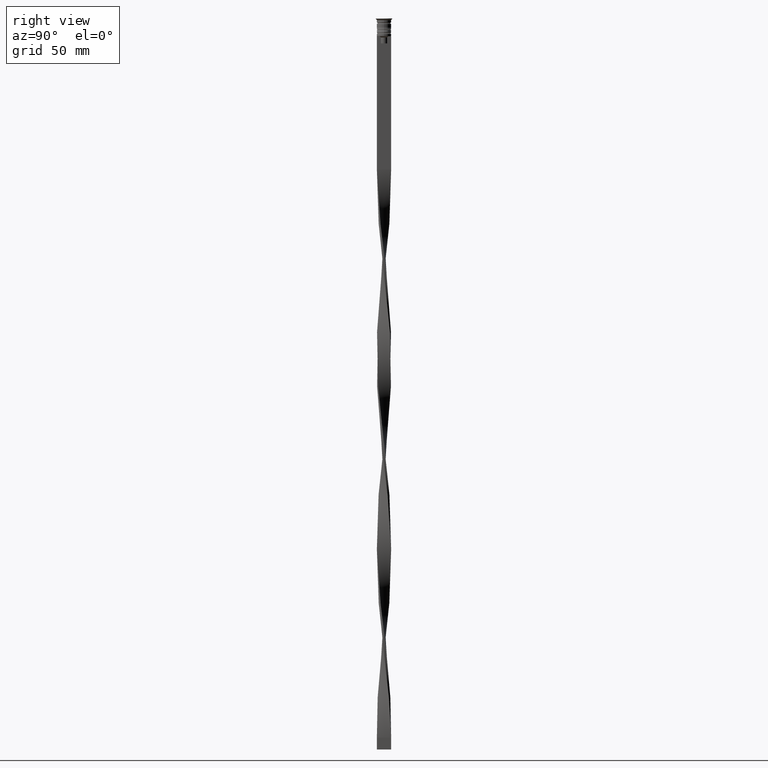
[diagram: clean part render]
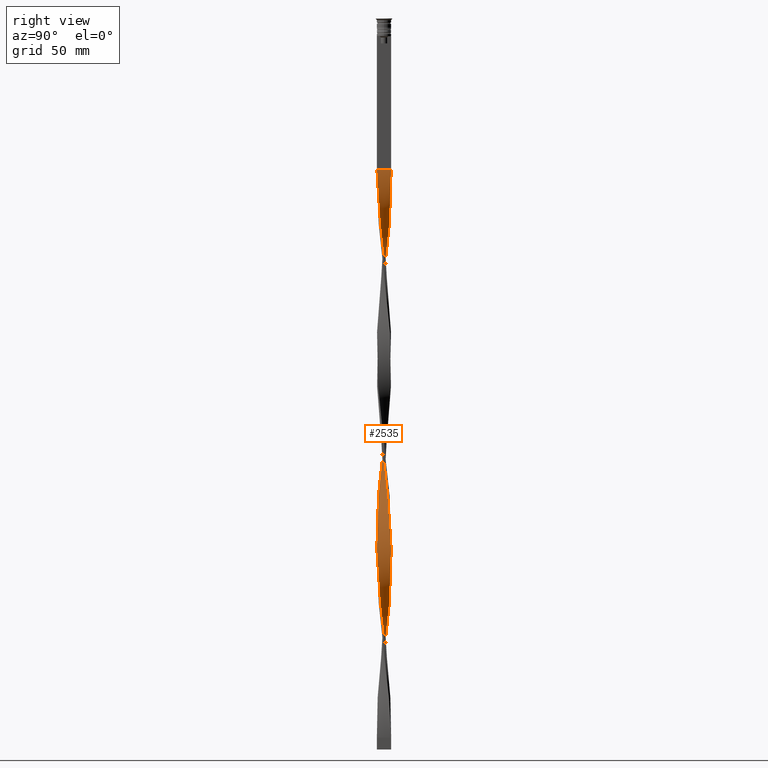
[diagram: same view with one face highlighted and labeled with its STEP entity id]
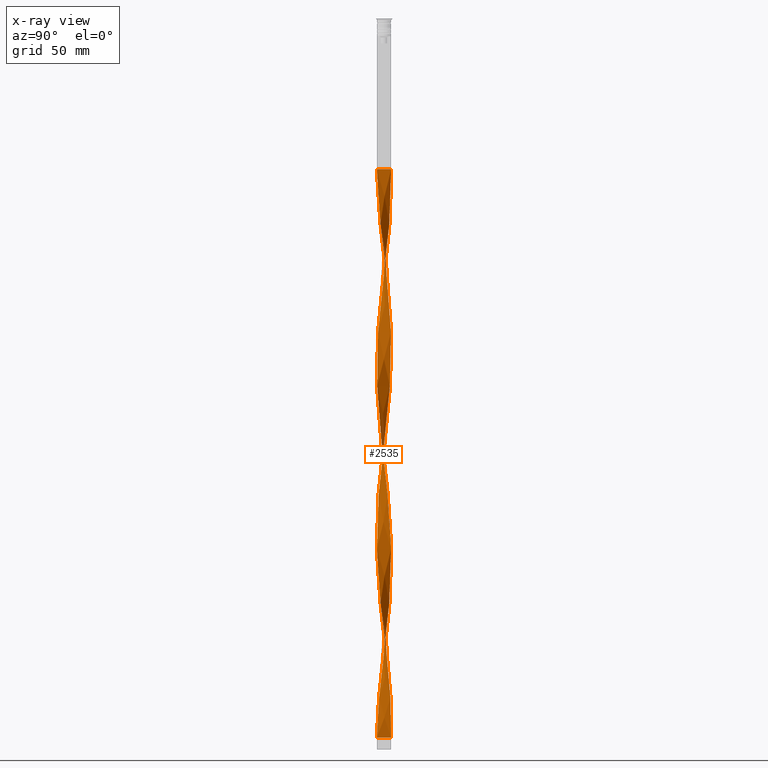
[diagram: x-ray of the same camera — body ghosted, the highlighted face saturated]
A machine part, right view. The second image highlights one B-rep face of the part: STEP entity #2535.
The next image is the same camera in x-ray: the body ghosted, the highlighted face saturated — about 0% of this face is hidden behind the body in this view.
In plain terms, the highlighted face is a freeform B-spline surface patch.
Its self-contained STEP definition (entity closure, byte-faithful):
#16 = CARTESIAN_POINT ( 'NONE',  ( 0.4515227249772658102, 3.007678046072934208, -294.5333333333333030 ) ) ;
#20 = CARTESIAN_POINT ( 'NONE',  ( 0.4999999999999998890, 3.000000000000000000, -63.50000000000000000 ) ) ;
#35 = CARTESIAN_POINT ( 'NONE',  ( -0.9164682371244570191, -2.900014822434876738, -210.8833333333333258 ) ) ;
#39 = CARTESIAN_POINT ( 'NONE',  ( -1.144704353466773794, 2.827887207922633372, -77.44166666666669130 ) ) ;
#41 = CARTESIAN_POINT ( 'NONE',  ( 2.335747457686308870, -1.962543740019620397, -81.42500000000001137 ) ) ;
#57 = CARTESIAN_POINT ( 'NONE',  ( 2.474873734152917226, 1.767766952966368210, -202.9166666666666572 ) ) ;
#58 = CARTESIAN_POINT ( 'NONE',  ( 1.999981050443478514, -2.303772973937591839, -77.44166666666669130 ) ) ;
#82 = CARTESIAN_POINT ( 'NONE',  ( 2.335747457686309758, 1.962543740019619731, -204.9083333333333599 ) ) ;
#83 = CARTESIAN_POINT ( 'NONE',  ( 2.303772973937591839, 1.999981050443478514, -117.2750000000000199 ) ) ;
#93 = CARTESIAN_POINT ( 'NONE',  ( 0.9164682371244560199, -2.900014822434876738, -155.1166666666666742 ) ) ;
#100 = CARTESIAN_POINT ( 'NONE',  ( -0.9164682371244562420, 2.900014822434877182, -234.7833333333333314 ) ) ;
#101 = CARTESIAN_POINT ( 'NONE',  ( 0.2148133291723926808, 3.043213655198747869, -137.1916666666666913 ) ) ;
#112 = CARTESIAN_POINT ( 'NONE',  ( -0.7361051204738556786, -2.960649146587690961, -141.1749999999999829 ) ) ;
#118 = CARTESIAN_POINT ( 'NONE',  ( 2.827887207922633817, 1.144704353466772462, -196.9416666666667197 ) ) ;
#119 = CARTESIAN_POINT ( 'NONE',  ( -1.767766952966369765, -2.474873734152915894, -202.9166666666666572 ) ) ;
#127 = CARTESIAN_POINT ( 'NONE',  ( 3.000000000000000000, -0.5000000000000004441, -183.0000000000000000 ) ) ;
#139 = CARTESIAN_POINT ( 'NONE',  ( -3.043213655198747869, -0.2148133291723919591, -268.6416666666666515 ) ) ;
#140 = CARTESIAN_POINT ( 'NONE',  ( -0.4999999999999995559, 3.000000000000000000, -143.1666666666666572 ) ) ;
#152 = CARTESIAN_POINT ( 'NONE',  ( -1.614968472182171100, -2.588275671453069027, -133.2083333333333144 ) ) ;
#156 =( BOUNDED_SURFACE ( )  B_SPLINE_SURFACE ( 1, 2, ( 
 ( #20, #3331, #2419, #877, #3351, #337, #282, #39, #616, #1181, #3054, #3928, #3909, #1884, #2713, #3034, #636, #2397, #1265, #2095, #2772, #2182, #2757, #1245, #3395, #314, #3658, #1818, #659, #3309, #2481, #2462, #1838, #1540, #1864, #3697, #3097, #3634, #296, #917, #3678, #896, #353, #3615, #573, #2118, #1801, #3946, #936, #2156, #1222, #2443, #3370, #2791, #424, #996, #2574, #3737, #2217, #1658, #2233, #3112, #676, #2259, #690, #1618, #3454, #118, #3472, #3169, #57, #82, #718, #1321, #3754, #3428, #1304, #1959, #2830, #1280, #1941, #392, #1043, #1014, #1061, #3149, #100, #2518, #2537, #407, #1360, #1638, #369, #979, #2848, #1339, #1594, #1899, #2553, #3775, #739, #2867, #2811, #139, #3792, #1917, #3131, #2276, #3490, #757, #1977, #3189, #451, #2501, #3721, #2200, #3411, #834, #3548, #3568, #1696 ),
 ( #533, #3287, #2316, #240, #1680, #487, #3268, #2057, #3229, #3593, #2614, #3531, #1740, #1103, #2376, #1118, #511, #201, #855, #1758, #3245, #3832, #2972, #796, #3852, #2015, #1135, #779, #1714, #2955, #223, #1451, #2909, #2638, #180, #2671, #2892, #2073, #160, #1377, #2294, #1436, #2595, #1079, #3811, #2929, #1419, #3508, #2334, #3885, #813, #2033, #1999, #3211, #2654, #469, #1392, #1155, #3868, #2351, #2752, #1513, #2093, #3656, #891, #3675, #595, #550, #3366, #2173, #2730, #310, #258, #3306, #35, #3613, #1796, #2477, #3943, #2459, #933, #3074, #2114, #874, #568, #3014, #333, #1776, #2989, #3907, #2693, #1178, #1215, #2437, #2394, #280, #295, #1261, #2152, #1472, #1494, #2710, #3925, #631, #1195, #2415, #1555, #3631, #3330, #1817, #914, #2133, #3033, #3349, #2768, #614, #16, #1836, #3692, #3051, #1532 ) ),
 .UNSPECIFIED., .F., .F., .F. ) 
 B_SPLINE_SURFACE_WITH_KNOTS ( ( 2, 2 ),
 ( 3, 2, 2, 2, 2, 2, 2, 2, 2, 2, 2, 2, 2, 2, 2, 2, 2, 2, 2, 2, 2, 2, 2, 2, 2, 2, 2, 2, 2, 2, 2, 2, 2, 2, 2, 2, 2, 2, 2, 2, 2, 2, 2, 2, 2, 2, 2, 2, 2, 2, 2, 2, 2, 2, 2, 2, 2, 2, 2, 2, 3 ),
 ( 0.000000000000000000, 1.000000000000000000 ),
 ( 0.000000000000000000, 0.01250000000000000069, 0.02500000000000000139, 0.03749999999999999861, 0.05000000000000000278, 0.06250000000000000000, 0.07499999999999999722, 0.08749999999999999445, 0.1000000000000000056, 0.1125000000000000028, 0.1250000000000000000, 0.1375000000000000111, 0.1499999999999999944, 0.1625000000000000056, 0.1749999999999999889, 0.1875000000000000000, 0.2000000000000000111, 0.2124999999999999944, 0.2250000000000000056, 0.2374999999999999889, 0.2500000000000000000, 0.2625000000000000111, 0.2750000000000000222, 0.2874999999999999778, 0.2999999999999999889, 0.3125000000000000000, 0.3250000000000000111, 0.3375000000000000222, 0.3499999999999999778, 0.3624999999999999889, 0.3750000000000000000, 0.3875000000000000111, 0.4000000000000000222, 0.4124999999999999778, 0.4249999999999999889, 0.4375000000000000000, 0.4500000000000000111, 0.4625000000000000222, 0.4749999999999999778, 0.4874999999999999889, 0.5000000000000000000, 0.5124999999999999556, 0.5250000000000000222, 0.5374999999999999778, 0.5500000000000000444, 0.5625000000000000000, 0.5749999999999999556, 0.5875000000000000222, 0.5999999999999999778, 0.6125000000000000444, 0.6250000000000000000, 0.6374999999999999556, 0.6500000000000000222, 0.6624999999999999778, 0.6750000000000000444, 0.6875000000000000000, 0.6999999999999999556, 0.7125000000000000222, 0.7249999999999999778, 0.7375000000000000444, 0.7500000000000000000 ),
 .UNSPECIFIED. ) 
 GEOMETRIC_REPRESENTATION_ITEM ( )  RATIONAL_B_SPLINE_SURFACE ( (
 ( 1.000000000000000000, 0.9969173337331279638, 1.000000000000000000, 0.9969173337331279638, 1.000000000000000000, 0.9969173337331279638, 1.000000000000000000, 0.9969173337331279638, 1.000000000000000000, 0.9969173337331279638, 1.000000000000000000, 0.9969173337331279638, 1.000000000000000000, 0.9969173337331279638, 1.000000000000000000, 0.9969173337331279638, 1.000000000000000000, 0.9969173337331279638, 1.000000000000000000, 0.9969173337331279638, 1.000000000000000000, 0.9969173337331279638, 1.000000000000000000, 0.9969173337331279638, 1.000000000000000000, 0.9969173337331279638, 1.000000000000000000, 0.9969173337331279638, 1.000000000000000000, 0.9969173337331279638, 1.000000000000000000, 0.9969173337331279638, 1.000000000000000000, 0.9969173337331279638, 1.000000000000000000, 0.9969173337331279638, 1.000000000000000000, 0.9969173337331279638, 1.000000000000000000, 0.9969173337331279638, 1.000000000000000000, 0.9969173337331279638, 1.000000000000000000, 0.9969173337331279638, 1.000000000000000000, 0.9969173337331279638, 1.000000000000000000, 0.9969173337331279638, 1.000000000000000000, 0.9969173337331279638, 1.000000000000000000, 0.9969173337331279638, 1.000000000000000000, 0.9969173337331279638, 1.000000000000000000, 0.9969173337331279638, 1.000000000000000000, 0.9969173337331279638, 1.000000000000000000, 0.9969173337331279638, 1.000000000000000000, 0.9969173337331279638, 1.000000000000000000, 0.9969173337331279638, 1.000000000000000000, 0.9969173337331279638, 1.000000000000000000, 0.9969173337331279638, 1.000000000000000000, 0.9969173337331279638, 1.000000000000000000, 0.9969173337331279638, 1.000000000000000000, 0.9969173337331279638, 1.000000000000000000, 0.9969173337331279638, 1.000000000000000000, 0.9969173337331279638, 1.000000000000000000, 0.9969173337331279638, 1.000000000000000000, 0.9969173337331279638, 1.000000000000000000, 0.9969173337331279638, 1.000000000000000000, 0.9969173337331279638, 1.000000000000000000, 0.9969173337331279638, 1.000000000000000000, 0.9969173337331279638, 1.000000000000000000, 0.9969173337331279638, 1.000000000000000000, 0.9969173337331279638, 1.000000000000000000, 0.9969173337331279638, 1.000000000000000000, 0.9969173337331279638, 1.000000000000000000, 0.9969173337331279638, 1.000000000000000000, 0.9969173337331279638, 1.000000000000000000, 0.9969173337331279638, 1.000000000000000000, 0.9969173337331279638, 1.000000000000000000, 0.9969173337331279638, 1.000000000000000000, 0.9969173337331279638, 1.000000000000000000, 0.9969173337331279638, 1.000000000000000000, 0.9969173337331279638, 1.000000000000000000, 0.9969173337331279638, 1.000000000000000000, 0.9969173337331279638, 1.000000000000000000, 0.9969173337331279638, 1.000000000000000000),
 ( 1.000000000000000000, 0.9969173337331279638, 1.000000000000000000, 0.9969173337331279638, 1.000000000000000000, 0.9969173337331279638, 1.000000000000000000, 0.9969173337331279638, 1.000000000000000000, 0.9969173337331279638, 1.000000000000000000, 0.9969173337331279638, 1.000000000000000000, 0.9969173337331279638, 1.000000000000000000, 0.9969173337331279638, 1.000000000000000000, 0.9969173337331279638, 1.000000000000000000, 0.9969173337331279638, 1.000000000000000000, 0.9969173337331279638, 1.000000000000000000, 0.9969173337331279638, 1.000000000000000000, 0.9969173337331279638, 1.000000000000000000, 0.9969173337331279638, 1.000000000000000000, 0.9969173337331279638, 1.000000000000000000, 0.9969173337331279638, 1.000000000000000000, 0.9969173337331279638, 1.000000000000000000, 0.9969173337331279638, 1.000000000000000000, 0.9969173337331279638, 1.000000000000000000, 0.9969173337331279638, 1.000000000000000000, 0.9969173337331279638, 1.000000000000000000, 0.9969173337331279638, 1.000000000000000000, 0.9969173337331279638, 1.000000000000000000, 0.9969173337331279638, 1.000000000000000000, 0.9969173337331279638, 1.000000000000000000, 0.9969173337331279638, 1.000000000000000000, 0.9969173337331279638, 1.000000000000000000, 0.9969173337331279638, 1.000000000000000000, 0.9969173337331279638, 1.000000000000000000, 0.9969173337331279638, 1.000000000000000000, 0.9969173337331279638, 1.000000000000000000, 0.9969173337331279638, 1.000000000000000000, 0.9969173337331279638, 1.000000000000000000, 0.9969173337331279638, 1.000000000000000000, 0.9969173337331279638, 1.000000000000000000, 0.9969173337331279638, 1.000000000000000000, 0.9969173337331279638, 1.000000000000000000, 0.9969173337331279638, 1.000000000000000000, 0.9969173337331279638, 1.000000000000000000, 0.9969173337331279638, 1.000000000000000000, 0.9969173337331279638, 1.000000000000000000, 0.9969173337331279638, 1.000000000000000000, 0.9969173337331279638, 1.000000000000000000, 0.9969173337331279638, 1.000000000000000000, 0.9969173337331279638, 1.000000000000000000, 0.9969173337331279638, 1.000000000000000000, 0.9969173337331279638, 1.000000000000000000, 0.9969173337331279638, 1.000000000000000000, 0.9969173337331279638, 1.000000000000000000, 0.9969173337331279638, 1.000000000000000000, 0.9969173337331279638, 1.000000000000000000, 0.9969173337331279638, 1.000000000000000000, 0.9969173337331279638, 1.000000000000000000, 0.9969173337331279638, 1.000000000000000000, 0.9969173337331279638, 1.000000000000000000, 0.9969173337331279638, 1.000000000000000000, 0.9969173337331279638, 1.000000000000000000, 0.9969173337331279638, 1.000000000000000000, 0.9969173337331279638, 1.000000000000000000, 0.9969173337331279638, 1.000000000000000000) ) ) 
 REPRESENTATION_ITEM ( '' )  SURFACE ( )  );
#160 = CARTESIAN_POINT ( 'NONE',  ( -0.02454077517687573706, 3.041282254305528010, -139.1833333333333371 ) ) ;
#161 = CARTESIAN_POINT ( 'NONE',  ( 1.962543740019620397, 2.335747457686308426, -121.2583333333333400 ) ) ;
#172 = CARTESIAN_POINT ( 'NONE',  ( 2.303772973937591839, -1.999981050443477626, -169.0583333333333655 ) ) ;
#174 = CARTESIAN_POINT ( 'NONE',  ( 0.4999999999999998890, -3.000000000000000000, -222.8333333333333144 ) ) ;
#180 = CARTESIAN_POINT ( 'NONE',  ( 0.9164682371244567971, 2.900014822434876738, -131.2166666666666686 ) ) ;
#183 = CARTESIAN_POINT ( 'NONE',  ( 1.614968472182170878, -2.588275671453069027, -73.45833333333334281 ) ) ;
#190 = CARTESIAN_POINT ( 'NONE',  ( -2.900014822434877182, -0.9164682371244562420, -274.6166666666666742 ) ) ;
#192 = CARTESIAN_POINT ( 'NONE',  ( 1.402579241272418953, -2.698661051697986757, -230.8000000000000114 ) ) ;
#201 = CARTESIAN_POINT ( 'NONE',  ( 3.043213655198747869, -0.2148133291723924587, -97.35833333333336270 ) ) ;
#216 = CARTESIAN_POINT ( 'NONE',  ( 1.962543740019620397, 2.335747457686308426, -280.5916666666666970 ) ) ;
#223 = CARTESIAN_POINT ( 'NONE',  ( 1.767766952966369320, 2.474873734152916338, -123.2500000000000000 ) ) ;
#234 = CARTESIAN_POINT ( 'NONE',  ( -0.4999999999999995559, 3.000000000000000000, -302.5000000000000000 ) ) ;
#240 = CARTESIAN_POINT ( 'NONE',  ( 1.190190010362667694, -2.809046431942904931, -69.47499999999999432 ) ) ;
#248 = CARTESIAN_POINT ( 'NONE',  ( -0.9164682371244562420, 2.900014822434877182, -234.7833333333333314 ) ) ;
#258 = CARTESIAN_POINT ( 'NONE',  ( -1.358847259689946574, -2.720943609271078589, -206.9000000000000057 ) ) ;
#271 = CARTESIAN_POINT ( 'NONE',  ( 1.807474761312824807, 2.446024322695329989, -210.8833333333333258 ) ) ;
#280 = CARTESIAN_POINT ( 'NONE',  ( 2.972142436947121436, -0.6882321207821390230, -252.7083333333332860 ) ) ;
#282 = CARTESIAN_POINT ( 'NONE',  ( -0.9164682371244562420, 2.900014822434877182, -75.45000000000000284 ) ) ;
#295 = CARTESIAN_POINT ( 'NONE',  ( 3.007678046072934208, -0.4515227249772656992, -254.7000000000000455 ) ) ;
#296 = CARTESIAN_POINT ( 'NONE',  ( -0.9631475654182616308, -2.884847789265297280, -139.1833333333333371 ) ) ;
#310 = CARTESIAN_POINT ( 'NONE',  ( -1.572990165913119798, -2.614000010619523806, -204.9083333333333599 ) ) ;
#314 = CARTESIAN_POINT ( 'NONE',  ( -2.972142436947120991, -0.6882321207821388009, -113.2916666666666856 ) ) ;
#333 = CARTESIAN_POINT ( 'NONE',  ( 1.807474761312824141, -2.446024322695330433, -234.7833333333333314 ) ) ;
#337 = CARTESIAN_POINT ( 'NONE',  ( -0.6882321207821390230, 2.972142436947121436, -73.45833333333335702 ) ) ;
#347 = CARTESIAN_POINT ( 'NONE',  ( -0.2148133291723922644, 3.043213655198747869, -69.47499999999999432 ) ) ;
#353 = CARTESIAN_POINT ( 'NONE',  ( -0.02454077517687660442, -3.041282254305528454, -147.1500000000000057 ) ) ;
#369 = CARTESIAN_POINT ( 'NONE',  ( -2.133158356978606118, 2.167864254064892915, -246.7333333333333201 ) ) ;
#370 = CARTESIAN_POINT ( 'NONE',  ( 1.358847259689946352, 2.720943609271078589, -127.2333333333333343 ) ) ;
#387 = CARTESIAN_POINT ( 'NONE',  ( 2.588275671453068139, -1.614968472182171988, -173.0416666666666856 ) ) ;
#392 = CARTESIAN_POINT ( 'NONE',  ( 0.2638948795261445435, 3.039350853412309039, -224.8250000000000171 ) ) ;
#393 = CARTESIAN_POINT ( 'NONE',  ( -2.335747457686308426, 1.962543740019620842, -161.0916666666666970 ) ) ;
#398 = ORIENTED_EDGE ( 'NONE', *, *, #1020, .F. ) ;
#402 = CARTESIAN_POINT ( 'NONE',  ( 1.767766952966368654, -2.474873734152917226, -163.0833333333333712 ) ) ;
#407 = CARTESIAN_POINT ( 'NONE',  ( -1.572990165913118021, 2.614000010619525138, -240.7583333333333542 ) ) ;
#408 = CARTESIAN_POINT ( 'NONE',  ( -3.043213655198747869, 0.2148133291723914595, -177.0250000000000057 ) ) ;
#416 = CARTESIAN_POINT ( 'NONE',  ( -2.884847789265297724, 0.9631475654182616308, -99.34999999999999432 ) ) ;
#424 = CARTESIAN_POINT ( 'NONE',  ( 2.446024322695329989, -1.807474761312824807, -171.0500000000000114 ) ) ;
#425 = CARTESIAN_POINT ( 'NONE',  ( -0.02454077517687573706, 3.041282254305528010, -139.1833333333333371 ) ) ;
#438 = CARTESIAN_POINT ( 'NONE',  ( 3.007678046072934652, 0.4515227249772650331, -190.9666666666666686 ) ) ;
#451 = CARTESIAN_POINT ( 'NONE',  ( -2.167864254064893359, -2.133158356978605674, -286.5666666666667197 ) ) ;
#452 = CARTESIAN_POINT ( 'NONE',  ( 3.041282254305528454, 0.02454077517687600768, -99.34999999999999432 ) ) ;
#461 = CARTESIAN_POINT ( 'NONE',  ( 2.720943609271079477, 1.358847259689945020, -198.9333333333333371 ) ) ;
#469 = CARTESIAN_POINT ( 'NONE',  ( -2.972142436947120547, 0.6882321207821407993, -173.0416666666666856 ) ) ;
#479 = CARTESIAN_POINT ( 'NONE',  ( 0.4999999999999998890, 3.000000000000000000, -222.8333333333333144 ) ) ;
#481 = CARTESIAN_POINT ( 'NONE',  ( 2.614000010619525138, -1.572990165913117799, -244.7416666666667027 ) ) ;
#487 = CARTESIAN_POINT ( 'NONE',  ( 1.614968472182170878, -2.588275671453069027, -73.45833333333335702 ) ) ;
#499 = CARTESIAN_POINT ( 'NONE',  ( -2.588275671453069027, 1.614968472182170878, -252.7083333333333144 ) ) ;
#501 = CARTESIAN_POINT ( 'NONE',  ( 2.698661051697987201, 1.402579241272418953, -270.6333333333333258 ) ) ;
#511 = CARTESIAN_POINT ( 'NONE',  ( 3.007678046072934208, -0.4515227249772656992, -95.36666666666667425 ) ) ;
#527 = CARTESIAN_POINT ( 'NONE',  ( 1.144704353466774460, 2.827887207922633372, -288.5583333333333940 ) ) ;
#533 = CARTESIAN_POINT ( 'NONE',  ( 0.4999999999999998890, -3.000000000000000000, -63.50000000000000000 ) ) ;
#540 = CARTESIAN_POINT ( 'NONE',  ( -0.5000000000000002220, -3.000000000000000000, -302.5000000000000000 ) ) ;
#541 = CARTESIAN_POINT ( 'NONE',  ( -2.720943609271079033, -1.358847259689945686, -278.6000000000000227 ) ) ;
#550 = CARTESIAN_POINT ( 'NONE',  ( -2.303772973937592727, -1.999981050443477182, -196.9416666666667197 ) ) ;
#558 = CARTESIAN_POINT ( 'NONE',  ( -2.614000010619525138, -1.572990165913117577, -280.5916666666666970 ) ) ;
#568 = CARTESIAN_POINT ( 'NONE',  ( 1.402579241272418953, -2.698661051697986757, -230.8000000000000114 ) ) ;
#573 = CARTESIAN_POINT ( 'NONE',  ( 0.4515227249772650886, -3.007678046072934652, -151.1333333333333542 ) ) ;
#595 = CARTESIAN_POINT ( 'NONE',  ( -2.446024322695331321, -1.807474761312823919, -194.9500000000000171 ) ) ;
#605 = EDGE_LOOP ( 'NONE', ( #713, #2609, #398, #3501 ) ) ;
#614 = CARTESIAN_POINT ( 'NONE',  ( 0.6882321207821392450, 2.972142436947121436, -292.5416666666666856 ) ) ;
#616 = CARTESIAN_POINT ( 'NONE',  ( -1.358847259689946130, 2.720943609271079033, -79.43333333333332291 ) ) ;
#629 = CARTESIAN_POINT ( 'NONE',  ( 0.02454077517687617074, 3.041282254305528454, -67.48333333333333428 ) ) ;
#631 = CARTESIAN_POINT ( 'NONE',  ( 2.809046431942904931, 1.190190010362667472, -268.6416666666666515 ) ) ;
#636 = CARTESIAN_POINT ( 'NONE',  ( -2.698661051697986757, 1.402579241272419175, -95.36666666666667425 ) ) ;
#659 = CARTESIAN_POINT ( 'NONE',  ( -2.720943609271079033, -1.358847259689945686, -119.2666666666666799 ) ) ;
#676 = CARTESIAN_POINT ( 'NONE',  ( 3.041282254305528454, -0.02454077517687676749, -186.9833333333333485 ) ) ;
#677 = CARTESIAN_POINT ( 'NONE',  ( -0.6882321207821410214, -2.972142436947120547, -212.8750000000000000 ) ) ;
#685 = CARTESIAN_POINT ( 'NONE',  ( -2.303772973937590951, 1.999981050443478514, -89.39166666666667993 ) ) ;
#690 = CARTESIAN_POINT ( 'NONE',  ( 3.007678046072934652, 0.4515227249772650331, -190.9666666666666686 ) ) ;
#691 = CARTESIAN_POINT ( 'NONE',  ( -0.9631475654182609647, 2.884847789265297724, -147.1500000000000057 ) ) ;
#711 = CARTESIAN_POINT ( 'NONE',  ( -3.039350853412309483, 0.2638948795261447100, -105.3250000000000028 ) ) ;
#713 = ORIENTED_EDGE ( 'NONE', *, *, #3393, .F. ) ;
#718 = CARTESIAN_POINT ( 'NONE',  ( 2.167864254064893803, 2.133158356978605674, -206.9000000000000057 ) ) ;
#719 = CARTESIAN_POINT ( 'NONE',  ( 2.446024322695330433, 1.807474761312824141, -115.2833333333333314 ) ) ;
#732 = CARTESIAN_POINT ( 'NONE',  ( -3.041282254305528454, 0.02454077517687633381, -107.3166666666666771 ) ) ;
#739 = CARTESIAN_POINT ( 'NONE',  ( -3.000000000000000000, 0.5000000000000001110, -262.6666666666667425 ) ) ;
#740 = CARTESIAN_POINT ( 'NONE',  ( -2.446024322695331321, -1.807474761312823919, -194.9500000000000171 ) ) ;
#749 = CARTESIAN_POINT ( 'NONE',  ( -1.962543740019620397, 2.335747457686308870, -85.40833333333333144 ) ) ;
#757 = CARTESIAN_POINT ( 'NONE',  ( -2.614000010619525138, -1.572990165913117577, -280.5916666666666401 ) ) ;
#758 = CARTESIAN_POINT ( 'NONE',  ( -2.303772973937592283, -1.999981050443477182, -196.9416666666667197 ) ) ;
#767 = CARTESIAN_POINT ( 'NONE',  ( -0.9631475654182616308, -2.884847789265297280, -139.1833333333333371 ) ) ;
#770 = CARTESIAN_POINT ( 'NONE',  ( 2.809046431942904931, 1.190190010362667472, -268.6416666666666515 ) ) ;
#779 = CARTESIAN_POINT ( 'NONE',  ( 2.303772973937592283, 1.999981050443478514, -117.2750000000000199 ) ) ;
#789 = CARTESIAN_POINT ( 'NONE',  ( -0.4515227249772654772, 3.007678046072934208, -230.8000000000000114 ) ) ;
#796 = CARTESIAN_POINT ( 'NONE',  ( 2.809046431942904931, 1.190190010362667472, -109.3083333333333371 ) ) ;
#808 = CARTESIAN_POINT ( 'NONE',  ( -0.2638948795261441549, 3.039350853412309483, -300.5083333333334394 ) ) ;
#813 = CARTESIAN_POINT ( 'NONE',  ( -2.474873734152916338, 1.767766952966369765, -163.0833333333333712 ) ) ;
#823 = CARTESIAN_POINT ( 'NONE',  ( -0.5000000000000002220, -3.000000000000000000, -302.5000000000000000 ) ) ;
#825 = CARTESIAN_POINT ( 'NONE',  ( 2.720943609271079033, -1.358847259689946130, -246.7333333333333201 ) ) ;
#834 = CARTESIAN_POINT ( 'NONE',  ( -1.190190010362667916, -2.809046431942904931, -296.5250000000000341 ) ) ;
#839 = CARTESIAN_POINT ( 'NONE',  ( 0.9631475654182614088, -2.884847789265297724, -67.48333333333333428 ) ) ;
#855 = CARTESIAN_POINT ( 'NONE',  ( 3.041282254305528454, 0.02454077517687600768, -99.34999999999999432 ) ) ;
#864 = CARTESIAN_POINT ( 'NONE',  ( -2.827887207922633372, -1.144704353466774016, -276.6083333333333485 ) ) ;
#874 = CARTESIAN_POINT ( 'NONE',  ( 1.190190010362667694, -2.809046431942904931, -228.8083333333333655 ) ) ;
#877 = CARTESIAN_POINT ( 'NONE',  ( -0.2148133291723922367, 3.043213655198747869, -69.47499999999999432 ) ) ;
#891 = CARTESIAN_POINT ( 'NONE',  ( -2.698661051697987201, -1.402579241272418509, -190.9666666666666686 ) ) ;
#896 = CARTESIAN_POINT ( 'NONE',  ( -0.2638948795261449320, -3.039350853412309039, -145.1583333333333314 ) ) ;
#914 = CARTESIAN_POINT ( 'NONE',  ( 1.767766952966369320, 2.474873734152916338, -282.5833333333333712 ) ) ;
#917 = CARTESIAN_POINT ( 'NONE',  ( -0.7361051204738555676, -2.960649146587690517, -141.1749999999999829 ) ) ;
#932 = LINE ( 'NONE', #1553, #1735 ) ;
#933 = CARTESIAN_POINT ( 'NONE',  ( 0.4999999999999998890, -3.000000000000000000, -222.8333333333333144 ) ) ;
#936 = CARTESIAN_POINT ( 'NONE',  ( 1.358847259689945686, -2.720943609271079033, -159.1000000000000227 ) ) ;
#955 = CARTESIAN_POINT ( 'NONE',  ( 2.972142436947121436, -0.6882321207821390230, -93.37500000000001421 ) ) ;
#979 = CARTESIAN_POINT ( 'NONE',  ( -2.303772973937591395, 1.999981050443478514, -248.7250000000000227 ) ) ;
#980 = CARTESIAN_POINT ( 'NONE',  ( -2.809046431942905819, -1.190190010362665918, -188.9750000000000227 ) ) ;
#996 = CARTESIAN_POINT ( 'NONE',  ( 2.588275671453068139, -1.614968472182172210, -173.0416666666666856 ) ) ;
#997 = CARTESIAN_POINT ( 'NONE',  ( -3.007678046072934208, 0.4515227249772660323, -175.0333333333333599 ) ) ;
#1008 = CARTESIAN_POINT ( 'NONE',  ( -2.960649146587690961, 0.7361051204738554565, -101.3416666666666828 ) ) ;
#1014 = CARTESIAN_POINT ( 'NONE',  ( -0.2148133291723922367, 3.043213655198747869, -228.8083333333333655 ) ) ;
#1020 = EDGE_CURVE ( 'NONE', #3880, #1770, #1495, .T. ) ;
#1036 = CARTESIAN_POINT ( 'NONE',  ( -1.358847259689946130, 2.720943609271079033, -79.43333333333332291 ) ) ;
#1043 = CARTESIAN_POINT ( 'NONE',  ( 0.02454077517687617074, 3.041282254305528454, -226.8166666666666629 ) ) ;
#1044 = CARTESIAN_POINT ( 'NONE',  ( -2.960649146587690961, -0.7361051204738561227, -184.9916666666666742 ) ) ;
#1054 = CARTESIAN_POINT ( 'NONE',  ( -1.999981050443478514, -2.303772973937590951, -129.2250000000000227 ) ) ;
#1061 = CARTESIAN_POINT ( 'NONE',  ( -0.4515227249772654772, 3.007678046072934208, -230.8000000000000114 ) ) ;
#1062 = CARTESIAN_POINT ( 'NONE',  ( -2.900014822434876738, 0.9164682371244570191, -171.0500000000000114 ) ) ;
#1071 = CARTESIAN_POINT ( 'NONE',  ( 2.900014822434877182, 0.9164682371244560199, -194.9500000000000171 ) ) ;
#1073 = CARTESIAN_POINT ( 'NONE',  ( 1.807474761312824141, -2.446024322695330433, -234.7833333333333314 ) ) ;
#1079 = CARTESIAN_POINT ( 'NONE',  ( -1.190190010362667250, 2.809046431942904931, -149.1416666666667084 ) ) ;
#1089 = CARTESIAN_POINT ( 'NONE',  ( 0.2148133291723918759, -3.043213655198747869, -149.1416666666667084 ) ) ;
#1093 = CARTESIAN_POINT ( 'NONE',  ( 0.4515227249772658102, 3.007678046072934208, -294.5333333333333030 ) ) ;
#1103 = CARTESIAN_POINT ( 'NONE',  ( 2.827887207922633372, -1.144704353466774238, -89.39166666666667993 ) ) ;
#1111 = CARTESIAN_POINT ( 'NONE',  ( -3.039350853412309483, 0.2638948795261447100, -264.6583333333333030 ) ) ;
#1113 = CARTESIAN_POINT ( 'NONE',  ( 2.588275671453069471, 1.614968472182170656, -272.6250000000000568 ) ) ;
#1118 = CARTESIAN_POINT ( 'NONE',  ( 2.972142436947121436, -0.6882321207821390230, -93.37500000000001421 ) ) ;
#1127 = CARTESIAN_POINT ( 'NONE',  ( -1.358847259689946130, 2.720943609271079033, -238.7666666666666799 ) ) ;
#1135 = CARTESIAN_POINT ( 'NONE',  ( 2.446024322695330433, 1.807474761312824141, -115.2833333333333314 ) ) ;
#1143 = CARTESIAN_POINT ( 'NONE',  ( -2.167864254064893359, -2.133158356978605674, -286.5666666666667197 ) ) ;
#1155 = CARTESIAN_POINT ( 'NONE',  ( -3.043213655198747869, 0.2148133291723914873, -177.0250000000000341 ) ) ;
#1167 = CARTESIAN_POINT ( 'NONE',  ( -0.5000000000000000000, -1.000000000000000000, -302.5000000000000000 ) ) ;
#1168 = CARTESIAN_POINT ( 'NONE',  ( -1.572990165913117799, 2.614000010619525138, -240.7583333333333826 ) ) ;
#1171 = CARTESIAN_POINT ( 'NONE',  ( -0.4999999999999995559, 3.000000000000000000, -302.5000000000000000 ) ) ;
#1178 = CARTESIAN_POINT ( 'NONE',  ( 2.614000010619525138, -1.572990165913118021, -244.7416666666667027 ) ) ;
#1181 = CARTESIAN_POINT ( 'NONE',  ( -1.572990165913118021, 2.614000010619525138, -81.42500000000002558 ) ) ;
#1195 = CARTESIAN_POINT ( 'NONE',  ( 2.698661051697987201, 1.402579241272418953, -270.6333333333333258 ) ) ;
#1215 = CARTESIAN_POINT ( 'NONE',  ( 2.720943609271079033, -1.358847259689946130, -246.7333333333333201 ) ) ;
#1222 = CARTESIAN_POINT ( 'NONE',  ( 1.767766952966368654, -2.474873734152917226, -163.0833333333333712 ) ) ;
#1245 = CARTESIAN_POINT ( 'NONE',  ( -3.043213655198747869, -0.2148133291723919591, -109.3083333333333371 ) ) ;
#1261 = CARTESIAN_POINT ( 'NONE',  ( 3.043213655198747869, -0.2148133291723924587, -256.6916666666666629 ) ) ;
#1265 = CARTESIAN_POINT ( 'NONE',  ( -2.884847789265297724, 0.9631475654182616308, -99.34999999999999432 ) ) ;
#1266 = CARTESIAN_POINT ( 'NONE',  ( 2.614000010619525138, -1.572990165913117799, -85.40833333333333144 ) ) ;
#1275 = CARTESIAN_POINT ( 'NONE',  ( -0.9164682371244562420, 2.900014822434877182, -75.45000000000000284 ) ) ;
#1280 = CARTESIAN_POINT ( 'NONE',  ( 0.7361051204738573439, 2.960649146587690073, -220.8416666666666970 ) ) ;
#1282 = CARTESIAN_POINT ( 'NONE',  ( 3.007678046072934208, -0.4515227249772656992, -95.36666666666667425 ) ) ;
#1304 = CARTESIAN_POINT ( 'NONE',  ( 1.402579241272419619, 2.698661051697986757, -214.8666666666666742 ) ) ;
#1305 = CARTESIAN_POINT ( 'NONE',  ( 2.809046431942904931, 1.190190010362667472, -109.3083333333333371 ) ) ;
#1314 = CARTESIAN_POINT ( 'NONE',  ( 1.144704353466773572, -2.827887207922633372, -157.1083333333333769 ) ) ;
#1321 = CARTESIAN_POINT ( 'NONE',  ( 1.999981050443478070, 2.303772973937592283, -208.8916666666666799 ) ) ;
#1322 = CARTESIAN_POINT ( 'NONE',  ( -2.474873734152916338, 1.767766952966369765, -163.0833333333333712 ) ) ;
#1332 = CARTESIAN_POINT ( 'NONE',  ( -2.588275671453069027, 1.614968472182170878, -93.37500000000001421 ) ) ;
#1339 = CARTESIAN_POINT ( 'NONE',  ( -2.588275671453069027, 1.614968472182170878, -252.7083333333332860 ) ) ;
#1340 = CARTESIAN_POINT ( 'NONE',  ( 0.6882321207821392450, 2.972142436947121436, -133.2083333333333144 ) ) ;
#1353 = CARTESIAN_POINT ( 'NONE',  ( -2.720943609271079033, -1.358847259689945686, -119.2666666666666799 ) ) ;
#1360 = CARTESIAN_POINT ( 'NONE',  ( -1.767766952966369098, 2.474873734152916782, -242.7500000000000284 ) ) ;
#1361 = CARTESIAN_POINT ( 'NONE',  ( -1.402579241272418731, 2.698661051697987201, -151.1333333333333542 ) ) ;
#1371 = CARTESIAN_POINT ( 'NONE',  ( -1.190190010362667916, -2.809046431942904931, -137.1916666666666913 ) ) ;
#1377 = CARTESIAN_POINT ( 'NONE',  ( -0.2638948795261441549, 3.039350853412309039, -141.1749999999999829 ) ) ;
#1385 = CARTESIAN_POINT ( 'NONE',  ( 2.474873734152917226, 1.767766952966368210, -202.9166666666666572 ) ) ;
#1387 = CARTESIAN_POINT ( 'NONE',  ( 2.972142436947121436, -0.6882321207821390230, -252.7083333333333144 ) ) ;
#1392 = CARTESIAN_POINT ( 'NONE',  ( -3.007678046072934208, 0.4515227249772660323, -175.0333333333333599 ) ) ;
#1395 = CARTESIAN_POINT ( 'NONE',  ( 1.807474761312824141, -2.446024322695330433, -75.45000000000000284 ) ) ;
#1409 = CARTESIAN_POINT ( 'NONE',  ( 3.043213655198747869, -0.2148133291723924865, -256.6916666666666629 ) ) ;
#1419 = CARTESIAN_POINT ( 'NONE',  ( -1.807474761312823919, 2.446024322695330877, -155.1166666666666742 ) ) ;
#1427 = CARTESIAN_POINT ( 'NONE',  ( 1.402579241272419619, 2.698661051697986757, -214.8666666666666742 ) ) ;
#1436 = CARTESIAN_POINT ( 'NONE',  ( -0.7361051204738547904, 2.960649146587690517, -145.1583333333333314 ) ) ;
#1444 = CARTESIAN_POINT ( 'NONE',  ( 2.335747457686309758, 1.962543740019619509, -204.9083333333333599 ) ) ;
#1446 = CARTESIAN_POINT ( 'NONE',  ( 0.9631475654182614088, -2.884847789265297724, -226.8166666666666629 ) ) ;
#1451 = CARTESIAN_POINT ( 'NONE',  ( 1.572990165913118021, 2.614000010619525138, -125.2416666666667027 ) ) ;
#1460 = CARTESIAN_POINT ( 'NONE',  ( -1.767766952966369098, 2.474873734152916782, -242.7500000000000284 ) ) ;
#1472 = CARTESIAN_POINT ( 'NONE',  ( 3.039350853412309039, 0.2638948795261443769, -260.6750000000000682 ) ) ;
#1484 = CARTESIAN_POINT ( 'NONE',  ( -2.133158356978606118, 2.167864254064892915, -246.7333333333333201 ) ) ;
#1494 = CARTESIAN_POINT ( 'NONE',  ( 3.000000000000000000, 0.4999999999999996669, -262.6666666666667425 ) ) ;
#1495 = B_SPLINE_CURVE_WITH_KNOTS ( 'NONE', 3,
 ( #540, #1167, #1690, #2902 ),
 .UNSPECIFIED., .F., .F.,
 ( 4, 4 ),
 ( 0.000000000000000000, 1.000000000000000000 ),
 .UNSPECIFIED. ) ;
#1513 = CARTESIAN_POINT ( 'NONE',  ( -2.960649146587690517, -0.7361051204738560116, -184.9916666666666742 ) ) ;
#1532 = CARTESIAN_POINT ( 'NONE',  ( -0.4999999999999995559, 3.000000000000000000, -302.5000000000000000 ) ) ;
#1540 = CARTESIAN_POINT ( 'NONE',  ( -1.999981050443478514, -2.303772973937591395, -129.2250000000000512 ) ) ;
#1553 = CARTESIAN_POINT ( 'NONE',  ( 0.4999999999999998890, -3.000000000000000000, -63.50000000000000000 ) ) ;
#1555 = CARTESIAN_POINT ( 'NONE',  ( 2.446024322695330433, 1.807474761312824141, -274.6166666666666742 ) ) ;
#1556 = EDGE_CURVE ( 'NONE', #1709, #1770, #2601, .T. ) ;
#1559 = FACE_OUTER_BOUND ( 'NONE', #605, .T. ) ;
#1571 = CARTESIAN_POINT ( 'NONE',  ( -0.6882321207821390230, 2.972142436947121436, -73.45833333333334281 ) ) ;
#1594 = CARTESIAN_POINT ( 'NONE',  ( -2.698661051697986757, 1.402579241272419175, -254.7000000000000455 ) ) ;
#1596 = CARTESIAN_POINT ( 'NONE',  ( -1.999981050443478070, 2.303772973937591839, -157.1083333333333769 ) ) ;
#1612 = CARTESIAN_POINT ( 'NONE',  ( -2.827887207922633372, -1.144704353466774016, -117.2750000000000199 ) ) ;
#1618 = CARTESIAN_POINT ( 'NONE',  ( 2.972142436947120991, 0.6882321207821398001, -192.9583333333333428 ) ) ;
#1619 = CARTESIAN_POINT ( 'NONE',  ( -3.000000000000000000, -0.4999999999999993339, -183.0000000000000000 ) ) ;
#1631 = CARTESIAN_POINT ( 'NONE',  ( 1.962543740019620397, -2.335747457686309758, -165.0749999999999886 ) ) ;
#1638 = CARTESIAN_POINT ( 'NONE',  ( -1.962543740019620175, 2.335747457686308870, -244.7416666666667027 ) ) ;
#1639 = CARTESIAN_POINT ( 'NONE',  ( -3.039350853412309483, -0.2638948795261426561, -181.0083333333333258 ) ) ;
#1652 = CARTESIAN_POINT ( 'NONE',  ( 1.358847259689945686, -2.720943609271079033, -159.1000000000000227 ) ) ;
#1658 = CARTESIAN_POINT ( 'NONE',  ( 2.960649146587690073, -0.7361051204738571219, -181.0083333333333258 ) ) ;
#1672 = CARTESIAN_POINT ( 'NONE',  ( -2.698661051697986757, 1.402579241272419175, -95.36666666666667425 ) ) ;
#1680 = CARTESIAN_POINT ( 'NONE',  ( 1.402579241272418953, -2.698661051697986757, -71.46666666666666856 ) ) ;
#1681 = CARTESIAN_POINT ( 'NONE',  ( 2.884847789265297724, 0.9631475654182612978, -107.3166666666666771 ) ) ;
#1690 = CARTESIAN_POINT ( 'NONE',  ( -0.4999999999999997780, 1.000000000000000000, -302.5000000000000000 ) ) ;
#1691 = CARTESIAN_POINT ( 'NONE',  ( 2.614000010619524250, 1.572990165913118465, -200.9250000000000398 ) ) ;
#1692 = CARTESIAN_POINT ( 'NONE',  ( 2.303772973937591839, 1.999981050443478514, -276.6083333333333485 ) ) ;
#1696 = CARTESIAN_POINT ( 'NONE',  ( -0.5000000000000002220, -3.000000000000000000, -302.5000000000000000 ) ) ;
#1699 = CARTESIAN_POINT ( 'NONE',  ( 1.190190010362667472, -2.809046431942904931, -69.47499999999999432 ) ) ;
#1709 = VERTEX_POINT ( 'NONE', #3005 ) ;
#1714 = CARTESIAN_POINT ( 'NONE',  ( 2.133158356978606118, 2.167864254064892471, -119.2666666666666799 ) ) ;
#1727 = CARTESIAN_POINT ( 'NONE',  ( -1.614968472182171100, -2.588275671453069027, -292.5416666666666856 ) ) ;
#1731 = CARTESIAN_POINT ( 'NONE',  ( 3.007678046072934208, -0.4515227249772656992, -254.7000000000000455 ) ) ;
#1735 = VECTOR ( 'NONE', #3031, 1000.000000000000000 ) ;
#1740 = CARTESIAN_POINT ( 'NONE',  ( 2.720943609271079033, -1.358847259689946130, -87.40000000000000568 ) ) ;
#1751 = CARTESIAN_POINT ( 'NONE',  ( 3.041282254305528454, 0.02454077517687600768, -258.6833333333333940 ) ) ;
#1758 = CARTESIAN_POINT ( 'NONE',  ( 3.039350853412309039, 0.2638948795261443769, -101.3416666666666686 ) ) ;
#1769 = CARTESIAN_POINT ( 'NONE',  ( 1.614968472182170878, -2.588275671453069027, -232.7916666666666856 ) ) ;
#1770 = VERTEX_POINT ( 'NONE', #1171 ) ;
#1776 = CARTESIAN_POINT ( 'NONE',  ( 1.999981050443478514, -2.303772973937592283, -236.7750000000000341 ) ) ;
#1784 = CARTESIAN_POINT ( 'NONE',  ( -1.807474761312824363, -2.446024322695329989, -290.5499999999999545 ) ) ;
#1796 = CARTESIAN_POINT ( 'NONE',  ( -0.4515227249772663654, -3.007678046072934208, -214.8666666666666742 ) ) ;
#1801 = CARTESIAN_POINT ( 'NONE',  ( 0.9164682371244560199, -2.900014822434876738, -155.1166666666666742 ) ) ;
#1803 = CARTESIAN_POINT ( 'NONE',  ( 2.827887207922633372, -1.144704353466774460, -89.39166666666667993 ) ) ;
#1817 = CARTESIAN_POINT ( 'NONE',  ( 1.962543740019620175, 2.335747457686308426, -280.5916666666666401 ) ) ;
#1818 = CARTESIAN_POINT ( 'NONE',  ( -2.827887207922633372, -1.144704353466773794, -117.2750000000000199 ) ) ;
#1836 = CARTESIAN_POINT ( 'NONE',  ( 0.2148133291723926808, 3.043213655198747869, -296.5250000000000341 ) ) ;
#1838 = CARTESIAN_POINT ( 'NONE',  ( -2.167864254064893359, -2.133158356978605674, -127.2333333333333343 ) ) ;
#1851 = CARTESIAN_POINT ( 'NONE',  ( -0.4515227249772654772, 3.007678046072934208, -71.46666666666666856 ) ) ;
#1864 = CARTESIAN_POINT ( 'NONE',  ( -1.807474761312824363, -2.446024322695329989, -131.2166666666666686 ) ) ;
#1884 = CARTESIAN_POINT ( 'NONE',  ( -2.303772973937591395, 1.999981050443478514, -89.39166666666667993 ) ) ;
#1899 = CARTESIAN_POINT ( 'NONE',  ( -2.809046431942904931, 1.190190010362667694, -256.6916666666666629 ) ) ;
#1900 = CARTESIAN_POINT ( 'NONE',  ( 0.4515227249772658102, 3.007678046072934208, -135.1999999999999886 ) ) ;
#1910 = CARTESIAN_POINT ( 'NONE',  ( -1.767766952966369098, 2.474873734152916782, -83.41666666666667140 ) ) ;
#1917 = CARTESIAN_POINT ( 'NONE',  ( -2.972142436947120991, -0.6882321207821388009, -272.6250000000000568 ) ) ;
#1920 = CARTESIAN_POINT ( 'NONE',  ( -1.190190010362667250, 2.809046431942904931, -149.1416666666667084 ) ) ;
#1937 = CARTESIAN_POINT ( 'NONE',  ( -0.5000000000000002220, -3.000000000000000000, -143.1666666666666572 ) ) ;
#1941 = CARTESIAN_POINT ( 'NONE',  ( 0.4999999999999998890, 3.000000000000000000, -222.8333333333333144 ) ) ;
#1942 = CARTESIAN_POINT ( 'NONE',  ( -1.614968472182170434, 2.588275671453069915, -153.1250000000000000 ) ) ;
#1954 = CARTESIAN_POINT ( 'NONE',  ( -2.614000010619525138, -1.572990165913117577, -121.2583333333333400 ) ) ;
#1959 = CARTESIAN_POINT ( 'NONE',  ( 1.190190010362667028, 2.809046431942904931, -216.8583333333333769 ) ) ;
#1960 = CARTESIAN_POINT ( 'NONE',  ( -2.167864254064892471, 2.133158356978606118, -159.1000000000000227 ) ) ;
#1969 = CARTESIAN_POINT ( 'NONE',  ( 3.041282254305528454, -0.02454077517687676749, -186.9833333333333485 ) ) ;
#1977 = CARTESIAN_POINT ( 'NONE',  ( -2.474873734152916782, -1.767766952966368654, -282.5833333333333712 ) ) ;
#1978 = CARTESIAN_POINT ( 'NONE',  ( -2.698661051697987201, -1.402579241272418509, -190.9666666666666686 ) ) ;
#1989 = CARTESIAN_POINT ( 'NONE',  ( -3.007678046072934652, -0.4515227249772653106, -111.3000000000000114 ) ) ;
#1999 = CARTESIAN_POINT ( 'NONE',  ( -2.720943609271078589, 1.358847259689946352, -167.0666666666666629 ) ) ;
#2002 = CARTESIAN_POINT ( 'NONE',  ( 0.7361051204738552345, -2.960649146587690961, -65.49166666666667425 ) ) ;
#2008 = CARTESIAN_POINT ( 'NONE',  ( -1.144704353466774016, 2.827887207922633372, -236.7750000000000341 ) ) ;
#2015 = CARTESIAN_POINT ( 'NONE',  ( 2.588275671453069471, 1.614968472182170656, -113.2916666666666856 ) ) ;
#2024 = CARTESIAN_POINT ( 'NONE',  ( 0.02454077517687617074, 3.041282254305528454, -226.8166666666666629 ) ) ;
#2027 = CARTESIAN_POINT ( 'NONE',  ( 0.7361051204738552345, -2.960649146587690961, -224.8250000000000171 ) ) ;
#2033 = CARTESIAN_POINT ( 'NONE',  ( -2.614000010619524250, 1.572990165913119576, -165.0749999999999886 ) ) ;
#2046 = CARTESIAN_POINT ( 'NONE',  ( -2.809046431942904931, 1.190190010362667472, -256.6916666666666629 ) ) ;
#2049 = CARTESIAN_POINT ( 'NONE',  ( 2.827887207922633372, -1.144704353466774460, -248.7250000000000227 ) ) ;
#2057 = CARTESIAN_POINT ( 'NONE',  ( 1.999981050443478514, -2.303772973937592283, -77.44166666666669130 ) ) ;
#2060 = CARTESIAN_POINT ( 'NONE',  ( 1.402579241272418953, -2.698661051697986757, -71.46666666666666856 ) ) ;
#2068 = CARTESIAN_POINT ( 'NONE',  ( 2.474873734152916782, -1.767766952966369098, -242.7500000000000284 ) ) ;
#2073 = CARTESIAN_POINT ( 'NONE',  ( 0.2148133291723926808, 3.043213655198747869, -137.1916666666666913 ) ) ;
#2082 = CARTESIAN_POINT ( 'NONE',  ( -3.041282254305528454, 0.02454077517687633381, -266.6499999999999773 ) ) ;
#2093 = CARTESIAN_POINT ( 'NONE',  ( -2.884847789265297724, -0.9631475654182608537, -186.9833333333333485 ) ) ;
#2095 = CARTESIAN_POINT ( 'NONE',  ( -2.960649146587690517, 0.7361051204738553455, -101.3416666666666686 ) ) ;
#2114 = CARTESIAN_POINT ( 'NONE',  ( 0.9631475654182614088, -2.884847789265297724, -226.8166666666666629 ) ) ;
#2118 = CARTESIAN_POINT ( 'NONE',  ( 0.6882321207821385789, -2.972142436947121436, -153.1250000000000000 ) ) ;
#2133 = CARTESIAN_POINT ( 'NONE',  ( 1.572990165913118021, 2.614000010619525138, -284.5750000000001023 ) ) ;
#2152 = CARTESIAN_POINT ( 'NONE',  ( 3.041282254305528454, 0.02454077517687600768, -258.6833333333333940 ) ) ;
#2156 = CARTESIAN_POINT ( 'NONE',  ( 1.572990165913117577, -2.614000010619525582, -161.0916666666666970 ) ) ;
#2157 = CARTESIAN_POINT ( 'NONE',  ( 2.167864254064892915, -2.133158356978606118, -79.43333333333332291 ) ) ;
#2173 = CARTESIAN_POINT ( 'NONE',  ( -1.962543740019620175, -2.335747457686309314, -200.9250000000000682 ) ) ;
#2182 = CARTESIAN_POINT ( 'NONE',  ( -3.039350853412309039, 0.2638948795261447100, -105.3249999999999886 ) ) ;
#2200 = CARTESIAN_POINT ( 'NONE',  ( -1.614968472182171100, -2.588275671453069027, -292.5416666666666856 ) ) ;
#2217 = CARTESIAN_POINT ( 'NONE',  ( 2.884847789265297280, -0.9631475654182618529, -179.0166666666666515 ) ) ;
#2218 = CARTESIAN_POINT ( 'NONE',  ( 0.02454077517687541440, -3.041282254305528010, -218.8500000000000227 ) ) ;
#2228 = CARTESIAN_POINT ( 'NONE',  ( -2.474873734152916782, -1.767766952966368654, -123.2500000000000000 ) ) ;
#2233 = CARTESIAN_POINT ( 'NONE',  ( 3.000000000000000000, -0.5000000000000004441, -183.0000000000000000 ) ) ;
#2237 = CARTESIAN_POINT ( 'NONE',  ( 2.588275671453069471, 1.614968472182170656, -113.2916666666666998 ) ) ;
#2253 = CARTESIAN_POINT ( 'NONE',  ( -3.043213655198747869, -0.2148133291723919869, -109.3083333333333371 ) ) ;
#2259 = CARTESIAN_POINT ( 'NONE',  ( 3.043213655198747869, 0.2148133291723903493, -188.9750000000000512 ) ) ;
#2260 = CARTESIAN_POINT ( 'NONE',  ( -0.2148133291723915705, -3.043213655198747869, -216.8583333333333769 ) ) ;
#2268 = CARTESIAN_POINT ( 'NONE',  ( 1.572990165913117577, -2.614000010619525582, -161.0916666666666970 ) ) ;
#2276 = CARTESIAN_POINT ( 'NONE',  ( -2.827887207922633372, -1.144704353466773794, -276.6083333333332916 ) ) ;
#2277 = CARTESIAN_POINT ( 'NONE',  ( 2.133158356978606118, 2.167864254064892471, -119.2666666666666799 ) ) ;
#2286 = CARTESIAN_POINT ( 'NONE',  ( 2.960649146587690517, -0.7361051204738571219, -181.0083333333333258 ) ) ;
#2294 = CARTESIAN_POINT ( 'NONE',  ( -0.4999999999999995559, 3.000000000000000000, -143.1666666666666572 ) ) ;
#2305 = CARTESIAN_POINT ( 'NONE',  ( 1.999981050443478070, 2.303772973937591839, -208.8916666666667084 ) ) ;
#2316 = CARTESIAN_POINT ( 'NONE',  ( 0.9631475654182614088, -2.884847789265297724, -67.48333333333333428 ) ) ;
#2326 = CARTESIAN_POINT ( 'NONE',  ( 2.167864254064893803, 2.133158356978605674, -206.9000000000000057 ) ) ;
#2328 = CARTESIAN_POINT ( 'NONE',  ( 1.767766952966369320, 2.474873734152916338, -282.5833333333333712 ) ) ;
#2334 = CARTESIAN_POINT ( 'NONE',  ( -2.167864254064892471, 2.133158356978606118, -159.1000000000000227 ) ) ;
#2343 = CARTESIAN_POINT ( 'NONE',  ( -2.335747457686308870, -1.962543740019620397, -284.5750000000001023 ) ) ;
#2351 = CARTESIAN_POINT ( 'NONE',  ( -3.039350853412309483, -0.2638948795261427116, -181.0083333333333258 ) ) ;
#2376 = CARTESIAN_POINT ( 'NONE',  ( 2.900014822434876738, -0.9164682371244565751, -91.38333333333333997 ) ) ;
#2384 = CARTESIAN_POINT ( 'NONE',  ( -3.007678046072934652, -0.4515227249772653106, -270.6333333333333258 ) ) ;
#2394 = CARTESIAN_POINT ( 'NONE',  ( 2.900014822434876738, -0.9164682371244565751, -250.7166666666666970 ) ) ;
#2397 = CARTESIAN_POINT ( 'NONE',  ( -2.809046431942904931, 1.190190010362667694, -97.35833333333336270 ) ) ;
#2415 = CARTESIAN_POINT ( 'NONE',  ( 2.588275671453069471, 1.614968472182170656, -272.6250000000000568 ) ) ;
#2419 = CARTESIAN_POINT ( 'NONE',  ( 0.02454077517687617074, 3.041282254305528454, -67.48333333333333428 ) ) ;
#2437 = CARTESIAN_POINT ( 'NONE',  ( 2.827887207922633372, -1.144704353466774238, -248.7250000000000227 ) ) ;
#2443 = CARTESIAN_POINT ( 'NONE',  ( 1.962543740019620175, -2.335747457686309758, -165.0749999999999886 ) ) ;
#2451 = VERTEX_POINT ( 'NONE', #3533 ) ;
#2459 = CARTESIAN_POINT ( 'NONE',  ( 0.2638948795261426006, -3.039350853412309483, -220.8416666666666970 ) ) ;
#2462 = CARTESIAN_POINT ( 'NONE',  ( -2.335747457686308870, -1.962543740019620175, -125.2416666666667027 ) ) ;
#2477 = CARTESIAN_POINT ( 'NONE',  ( -0.2148133291723915983, -3.043213655198747869, -216.8583333333333769 ) ) ;
#2481 = CARTESIAN_POINT ( 'NONE',  ( -2.474873734152916782, -1.767766952966368654, -123.2500000000000000 ) ) ;
#2482 = CARTESIAN_POINT ( 'NONE',  ( 2.720943609271079033, -1.358847259689946130, -87.40000000000000568 ) ) ;
#2501 = CARTESIAN_POINT ( 'NONE',  ( -1.999981050443478514, -2.303772973937591395, -288.5583333333333940 ) ) ;
#2502 = CARTESIAN_POINT ( 'NONE',  ( -0.2638948795261441549, 3.039350853412309483, -141.1749999999999829 ) ) ;
#2518 = CARTESIAN_POINT ( 'NONE',  ( -1.144704353466773794, 2.827887207922633372, -236.7750000000000341 ) ) ;
#2519 = CARTESIAN_POINT ( 'NONE',  ( -1.962543740019620397, -2.335747457686309314, -200.9250000000000398 ) ) ;
#2529 = CARTESIAN_POINT ( 'NONE',  ( -2.335747457686308870, -1.962543740019620397, -125.2416666666667027 ) ) ;
#2535 = ADVANCED_FACE ( 'NONE', ( #1559 ), #156, .T. ) ;
#2537 = CARTESIAN_POINT ( 'NONE',  ( -1.358847259689946130, 2.720943609271079033, -238.7666666666666799 ) ) ;
#2538 = CARTESIAN_POINT ( 'NONE',  ( -2.588275671453068583, -1.614968472182171322, -192.9583333333333428 ) ) ;
#2548 = CARTESIAN_POINT ( 'NONE',  ( 2.884847789265297280, -0.9631475654182618529, -179.0166666666666515 ) ) ;
#2553 = CARTESIAN_POINT ( 'NONE',  ( -2.884847789265297724, 0.9631475654182616308, -258.6833333333333940 ) ) ;
#2556 = CARTESIAN_POINT ( 'NONE',  ( -1.144704353466773572, -2.827887207922633372, -208.8916666666667084 ) ) ;
#2568 = CARTESIAN_POINT ( 'NONE',  ( -3.000000000000000000, 0.5000000000000001110, -103.3333333333333286 ) ) ;
#2574 = CARTESIAN_POINT ( 'NONE',  ( 2.698661051697986757, -1.402579241272419397, -175.0333333333333599 ) ) ;
#2575 = CARTESIAN_POINT ( 'NONE',  ( 1.767766952966369320, 2.474873734152916338, -123.2500000000000000 ) ) ;
#2587 = CARTESIAN_POINT ( 'NONE',  ( 2.446024322695329989, -1.807474761312824807, -171.0500000000000114 ) ) ;
#2589 = CARTESIAN_POINT ( 'NONE',  ( 3.000000000000000000, 0.4999999999999996669, -262.6666666666667425 ) ) ;
#2595 = CARTESIAN_POINT ( 'NONE',  ( -0.9631475654182609647, 2.884847789265297724, -147.1500000000000057 ) ) ;
#2601 =( BOUNDED_CURVE ( )  B_SPLINE_CURVE ( 2, ( #3573, #2002, #839, #1699, #2060, #183, #1395, #58, #2157, #41, #3311, #1266, #2482, #1803, #3698, #955, #1282, #2714, #452, #3429, #3132, #2869, #1681, #1305, #2831, #2237, #719, #83, #2277, #161, #2575, #3738, #370, #3170, #3473, #1340, #1900, #101, #425, #2502, #140, #3491, #691, #1920, #1361, #1942, #2812, #1596, #1960, #393, #1322, #3150, #3776, #3793, #1062, #3722, #997, #408, #3455, #1639, #1619, #1044, #2893, #980, #1978, #2538, #740, #758, #2849, #2519, #119, #3755, #3192, #2556, #3412, #677, #3113, #2260, #2218, #3500, #174, #2027, #1446, #2922, #192, #1769, #1073, #3863, #2982, #3804, #2068, #481, #825, #2049, #3543, #1387, #1731, #1409, #1751, #2631, #2589, #3846, #2905, #770, #501, #1113, #2608, #1692, #2947, #216, #2328, #3262, #3822, #527, #3879, #3223, #1093, #3585, #3280, #808, #234 ),
 .UNSPECIFIED., .F., .T. ) 
 B_SPLINE_CURVE_WITH_KNOTS ( ( 3, 2, 2, 2, 2, 2, 2, 2, 2, 2, 2, 2, 2, 2, 2, 2, 2, 2, 2, 2, 2, 2, 2, 2, 2, 2, 2, 2, 2, 2, 2, 2, 2, 2, 2, 2, 2, 2, 2, 2, 2, 2, 2, 2, 2, 2, 2, 2, 2, 2, 2, 2, 2, 2, 2, 2, 2, 2, 2, 2, 3 ),
 ( 0.000000000000000000, 0.01250000000000000243, 0.02500000000000000486, 0.03749999999999999861, 0.05000000000000000971, 0.06250000000000000000, 0.07499999999999999722, 0.08749999999999998057, 0.1000000000000000194, 0.1125000000000000028, 0.1250000000000000000, 0.1375000000000000111, 0.1499999999999999944, 0.1625000000000000056, 0.1749999999999999611, 0.1875000000000000000, 0.2000000000000000389, 0.2124999999999999944, 0.2250000000000000056, 0.2374999999999999611, 0.2500000000000000000, 0.2625000000000000111, 0.2750000000000000222, 0.2874999999999999778, 0.2999999999999999889, 0.3125000000000000000, 0.3250000000000000111, 0.3375000000000000777, 0.3499999999999999223, 0.3624999999999999889, 0.3750000000000000000, 0.3875000000000000111, 0.4000000000000000777, 0.4124999999999999223, 0.4249999999999999889, 0.4375000000000000000, 0.4500000000000000111, 0.4625000000000000777, 0.4749999999999999223, 0.4874999999999999889, 0.5000000000000000000, 0.5124999999999999556, 0.5250000000000000222, 0.5374999999999999778, 0.5500000000000000444, 0.5625000000000000000, 0.5749999999999999556, 0.5875000000000000222, 0.5999999999999999778, 0.6125000000000000444, 0.6250000000000000000, 0.6374999999999999556, 0.6500000000000000222, 0.6624999999999999778, 0.6750000000000001554, 0.6875000000000000000, 0.6999999999999998446, 0.7125000000000000222, 0.7249999999999999778, 0.7375000000000001554, 0.7500000000000000000 ),
 .UNSPECIFIED. ) 
 CURVE ( )  GEOMETRIC_REPRESENTATION_ITEM ( )  RATIONAL_B_SPLINE_CURVE ( ( 1.000000000000000000, 0.9969173337331279638, 1.000000000000000000, 0.9969173337331279638, 1.000000000000000000, 0.9969173337331279638, 1.000000000000000000, 0.9969173337331279638, 1.000000000000000000, 0.9969173337331279638, 1.000000000000000000, 0.9969173337331279638, 1.000000000000000000, 0.9969173337331279638, 1.000000000000000000, 0.9969173337331279638, 1.000000000000000000, 0.9969173337331279638, 1.000000000000000000, 0.9969173337331279638, 1.000000000000000000, 0.9969173337331279638, 1.000000000000000000, 0.9969173337331279638, 1.000000000000000000, 0.9969173337331279638, 1.000000000000000000, 0.9969173337331279638, 1.000000000000000000, 0.9969173337331279638, 1.000000000000000000, 0.9969173337331279638, 1.000000000000000000, 0.9969173337331279638, 1.000000000000000000, 0.9969173337331279638, 1.000000000000000000, 0.9969173337331279638, 1.000000000000000000, 0.9969173337331279638, 1.000000000000000000, 0.9969173337331279638, 1.000000000000000000, 0.9969173337331279638, 1.000000000000000000, 0.9969173337331279638, 1.000000000000000000, 0.9969173337331279638, 1.000000000000000000, 0.9969173337331279638, 1.000000000000000000, 0.9969173337331279638, 1.000000000000000000, 0.9969173337331279638, 1.000000000000000000, 0.9969173337331279638, 1.000000000000000000, 0.9969173337331279638, 1.000000000000000000, 0.9969173337331279638, 1.000000000000000000, 0.9969173337331279638, 1.000000000000000000, 0.9969173337331279638, 1.000000000000000000, 0.9969173337331279638, 1.000000000000000000, 0.9969173337331279638, 1.000000000000000000, 0.9969173337331279638, 1.000000000000000000, 0.9969173337331279638, 1.000000000000000000, 0.9969173337331279638, 1.000000000000000000, 0.9969173337331279638, 1.000000000000000000, 0.9969173337331279638, 1.000000000000000000, 0.9969173337331279638, 1.000000000000000000, 0.9969173337331279638, 1.000000000000000000, 0.9969173337331279638, 1.000000000000000000, 0.9969173337331279638, 1.000000000000000000, 0.9969173337331279638, 1.000000000000000000, 0.9969173337331279638, 1.000000000000000000, 0.9969173337331279638, 1.000000000000000000, 0.9969173337331279638, 1.000000000000000000, 0.9969173337331279638, 1.000000000000000000, 0.9969173337331279638, 1.000000000000000000, 0.9969173337331279638, 1.000000000000000000, 0.9969173337331279638, 1.000000000000000000, 0.9969173337331279638, 1.000000000000000000, 0.9969173337331279638, 1.000000000000000000, 0.9969173337331279638, 1.000000000000000000, 0.9969173337331279638, 1.000000000000000000, 0.9969173337331279638, 1.000000000000000000, 0.9969173337331279638, 1.000000000000000000, 0.9969173337331279638, 1.000000000000000000, 0.9969173337331279638, 1.000000000000000000, 0.9969173337331279638, 1.000000000000000000 ) ) 
 REPRESENTATION_ITEM ( '' )  );
#2606 = CARTESIAN_POINT ( 'NONE',  ( -1.572990165913117799, 2.614000010619525138, -81.42500000000001137 ) ) ;
#2608 = CARTESIAN_POINT ( 'NONE',  ( 2.446024322695330433, 1.807474761312824141, -274.6166666666666742 ) ) ;
#2609 = ORIENTED_EDGE ( 'NONE', *, *, #1556, .T. ) ;
#2614 = CARTESIAN_POINT ( 'NONE',  ( 2.474873734152916782, -1.767766952966369098, -83.41666666666667140 ) ) ;
#2631 = CARTESIAN_POINT ( 'NONE',  ( 3.039350853412309483, 0.2638948795261443769, -260.6750000000000682 ) ) ;
#2638 = CARTESIAN_POINT ( 'NONE',  ( 1.144704353466774238, 2.827887207922633372, -129.2250000000000512 ) ) ;
#2646 = CARTESIAN_POINT ( 'NONE',  ( -3.000000000000000000, 0.5000000000000001110, -262.6666666666667425 ) ) ;
#2654 = CARTESIAN_POINT ( 'NONE',  ( -2.900014822434876738, 0.9164682371244570191, -171.0500000000000114 ) ) ;
#2663 = CARTESIAN_POINT ( 'NONE',  ( -2.446024322695329989, 1.807474761312824363, -250.7166666666666970 ) ) ;
#2671 = CARTESIAN_POINT ( 'NONE',  ( 0.6882321207821392450, 2.972142436947121436, -133.2083333333333144 ) ) ;
#2679 = CARTESIAN_POINT ( 'NONE',  ( 0.2638948795261445435, 3.039350853412309483, -224.8250000000000171 ) ) ;
#2693 = CARTESIAN_POINT ( 'NONE',  ( 2.474873734152916782, -1.767766952966369098, -242.7500000000000284 ) ) ;
#2699 = CARTESIAN_POINT ( 'NONE',  ( -0.7361051204738556786, -2.960649146587690961, -300.5083333333334394 ) ) ;
#2710 = CARTESIAN_POINT ( 'NONE',  ( 2.960649146587690517, 0.7361051204738550124, -264.6583333333333599 ) ) ;
#2713 = CARTESIAN_POINT ( 'NONE',  ( -2.446024322695329989, 1.807474761312824363, -91.38333333333333997 ) ) ;
#2714 = CARTESIAN_POINT ( 'NONE',  ( 3.043213655198747869, -0.2148133291723924865, -97.35833333333334849 ) ) ;
#2730 = CARTESIAN_POINT ( 'NONE',  ( -1.767766952966369765, -2.474873734152915894, -202.9166666666666572 ) ) ;
#2752 = CARTESIAN_POINT ( 'NONE',  ( -3.000000000000000000, -0.4999999999999993339, -183.0000000000000000 ) ) ;
#2757 = CARTESIAN_POINT ( 'NONE',  ( -3.041282254305528454, 0.02454077517687633381, -107.3166666666666771 ) ) ;
#2768 = CARTESIAN_POINT ( 'NONE',  ( 0.9164682371244567971, 2.900014822434876738, -290.5499999999999545 ) ) ;
#2772 = CARTESIAN_POINT ( 'NONE',  ( -3.000000000000000000, 0.5000000000000001110, -103.3333333333333286 ) ) ;
#2791 = CARTESIAN_POINT ( 'NONE',  ( 2.303772973937592283, -1.999981050443477626, -169.0583333333333655 ) ) ;
#2811 = CARTESIAN_POINT ( 'NONE',  ( -3.041282254305528454, 0.02454077517687633381, -266.6499999999999773 ) ) ;
#2812 = CARTESIAN_POINT ( 'NONE',  ( -1.807474761312823919, 2.446024322695330877, -155.1166666666666742 ) ) ;
#2824 = CARTESIAN_POINT ( 'NONE',  ( 0.6882321207821385789, -2.972142436947121436, -153.1250000000000000 ) ) ;
#2830 = CARTESIAN_POINT ( 'NONE',  ( 0.9631475654182620749, 2.884847789265297280, -218.8500000000000227 ) ) ;
#2831 = CARTESIAN_POINT ( 'NONE',  ( 2.698661051697987201, 1.402579241272418953, -111.3000000000000114 ) ) ;
#2841 = CARTESIAN_POINT ( 'NONE',  ( 2.698661051697986757, -1.402579241272419397, -175.0333333333333599 ) ) ;
#2848 = CARTESIAN_POINT ( 'NONE',  ( -2.446024322695329989, 1.807474761312824363, -250.7166666666666970 ) ) ;
#2849 = CARTESIAN_POINT ( 'NONE',  ( -2.133158356978606562, -2.167864254064892027, -198.9333333333333371 ) ) ;
#2859 = CARTESIAN_POINT ( 'NONE',  ( 2.133158356978605674, -2.167864254064893359, -167.0666666666666629 ) ) ;
#2867 = CARTESIAN_POINT ( 'NONE',  ( -3.039350853412309039, 0.2638948795261447100, -264.6583333333333599 ) ) ;
#2869 = CARTESIAN_POINT ( 'NONE',  ( 2.960649146587690961, 0.7361051204738551235, -105.3250000000000028 ) ) ;
#2885 = CARTESIAN_POINT ( 'NONE',  ( -2.809046431942904931, 1.190190010362667472, -97.35833333333334849 ) ) ;
#2892 = CARTESIAN_POINT ( 'NONE',  ( 0.4515227249772658102, 3.007678046072934208, -135.1999999999999886 ) ) ;
#2893 = CARTESIAN_POINT ( 'NONE',  ( -2.884847789265297724, -0.9631475654182608537, -186.9833333333333485 ) ) ;
#2902 = CARTESIAN_POINT ( 'NONE',  ( -0.4999999999999995559, 3.000000000000000000, -302.5000000000000000 ) ) ;
#2903 = CARTESIAN_POINT ( 'NONE',  ( -2.446024322695329989, 1.807474761312824363, -91.38333333333333997 ) ) ;
#2905 = CARTESIAN_POINT ( 'NONE',  ( 2.884847789265297724, 0.9631475654182612978, -266.6499999999999773 ) ) ;
#2909 = CARTESIAN_POINT ( 'NONE',  ( 1.358847259689946352, 2.720943609271078589, -127.2333333333333343 ) ) ;
#2922 = CARTESIAN_POINT ( 'NONE',  ( 1.190190010362667472, -2.809046431942904931, -228.8083333333333655 ) ) ;
#2929 = CARTESIAN_POINT ( 'NONE',  ( -1.614968472182170434, 2.588275671453069915, -153.1250000000000000 ) ) ;
#2945 = CARTESIAN_POINT ( 'NONE',  ( -1.190190010362667916, -2.809046431942904931, -296.5250000000000341 ) ) ;
#2947 = CARTESIAN_POINT ( 'NONE',  ( 2.133158356978606118, 2.167864254064892471, -278.6000000000000227 ) ) ;
#2955 = CARTESIAN_POINT ( 'NONE',  ( 1.962543740019620175, 2.335747457686308426, -121.2583333333333400 ) ) ;
#2972 = CARTESIAN_POINT ( 'NONE',  ( 2.884847789265297724, 0.9631475654182612978, -107.3166666666666771 ) ) ;
#2980 = CARTESIAN_POINT ( 'NONE',  ( 1.190190010362667028, 2.809046431942904931, -216.8583333333333769 ) ) ;
#2982 = CARTESIAN_POINT ( 'NONE',  ( 2.167864254064892915, -2.133158356978606118, -238.7666666666666799 ) ) ;
#2989 = CARTESIAN_POINT ( 'NONE',  ( 2.167864254064892915, -2.133158356978606118, -238.7666666666666799 ) ) ;
#3001 = CARTESIAN_POINT ( 'NONE',  ( -1.402579241272419397, -2.698661051697986757, -294.5333333333333030 ) ) ;
#3005 = CARTESIAN_POINT ( 'NONE',  ( 0.4999999999999998890, -3.000000000000000000, -63.50000000000000000 ) ) ;
#3014 = CARTESIAN_POINT ( 'NONE',  ( 1.614968472182170878, -2.588275671453069027, -232.7916666666666572 ) ) ;
#3031 = DIRECTION ( 'NONE',  ( 0.000000000000000000, 1.000000000000000000, 0.000000000000000000 ) ) ;
#3033 = CARTESIAN_POINT ( 'NONE',  ( 1.358847259689946352, 2.720943609271078589, -286.5666666666667197 ) ) ;
#3034 = CARTESIAN_POINT ( 'NONE',  ( -2.588275671453069027, 1.614968472182170878, -93.37500000000001421 ) ) ;
#3051 = CARTESIAN_POINT ( 'NONE',  ( -0.2638948795261441549, 3.039350853412309039, -300.5083333333334394 ) ) ;
#3054 = CARTESIAN_POINT ( 'NONE',  ( -1.767766952966369098, 2.474873734152916782, -83.41666666666667140 ) ) ;
#3074 = CARTESIAN_POINT ( 'NONE',  ( 0.7361051204738551235, -2.960649146587690517, -224.8250000000000171 ) ) ;
#3097 = CARTESIAN_POINT ( 'NONE',  ( -1.402579241272419397, -2.698661051697986757, -135.1999999999999886 ) ) ;
#3112 = CARTESIAN_POINT ( 'NONE',  ( 3.039350853412309039, -0.2638948795261437108, -184.9916666666666742 ) ) ;
#3113 = CARTESIAN_POINT ( 'NONE',  ( -0.4515227249772663654, -3.007678046072934208, -214.8666666666666742 ) ) ;
#3123 = CARTESIAN_POINT ( 'NONE',  ( 0.4515227249772650886, -3.007678046072934652, -151.1333333333333542 ) ) ;
#3131 = CARTESIAN_POINT ( 'NONE',  ( -2.900014822434877182, -0.9164682371244562420, -274.6166666666666742 ) ) ;
#3132 = CARTESIAN_POINT ( 'NONE',  ( 3.000000000000000000, 0.4999999999999996669, -103.3333333333333286 ) ) ;
#3144 = CARTESIAN_POINT ( 'NONE',  ( -0.2638948795261449320, -3.039350853412309483, -145.1583333333333314 ) ) ;
#3149 = CARTESIAN_POINT ( 'NONE',  ( -0.6882321207821390230, 2.972142436947121436, -232.7916666666666572 ) ) ;
#3150 = CARTESIAN_POINT ( 'NONE',  ( -2.614000010619523806, 1.572990165913119354, -165.0749999999999886 ) ) ;
#3162 = CARTESIAN_POINT ( 'NONE',  ( -1.807474761312824363, -2.446024322695329989, -131.2166666666666686 ) ) ;
#3169 = CARTESIAN_POINT ( 'NONE',  ( 2.614000010619524250, 1.572990165913118688, -200.9250000000000682 ) ) ;
#3170 = CARTESIAN_POINT ( 'NONE',  ( 1.144704353466774460, 2.827887207922633372, -129.2250000000000227 ) ) ;
#3180 = CARTESIAN_POINT ( 'NONE',  ( 3.043213655198747869, 0.2148133291723903215, -188.9750000000000227 ) ) ;
#3189 = CARTESIAN_POINT ( 'NONE',  ( -2.335747457686308870, -1.962543740019620175, -284.5750000000001023 ) ) ;
#3192 = CARTESIAN_POINT ( 'NONE',  ( -1.358847259689946574, -2.720943609271078589, -206.9000000000000057 ) ) ;
#3204 = CARTESIAN_POINT ( 'NONE',  ( -0.02454077517687660442, -3.041282254305528454, -147.1500000000000057 ) ) ;
#3211 = CARTESIAN_POINT ( 'NONE',  ( -2.827887207922633372, 1.144704353466773128, -169.0583333333333655 ) ) ;
#3221 = CARTESIAN_POINT ( 'NONE',  ( -1.999981050443478514, -2.303772973937590951, -288.5583333333333940 ) ) ;
#3223 = CARTESIAN_POINT ( 'NONE',  ( 0.6882321207821392450, 2.972142436947121436, -292.5416666666666856 ) ) ;
#3229 = CARTESIAN_POINT ( 'NONE',  ( 2.167864254064892915, -2.133158356978606118, -79.43333333333332291 ) ) ;
#3237 = CARTESIAN_POINT ( 'NONE',  ( -2.303772973937590951, 1.999981050443478514, -248.7250000000000227 ) ) ;
#3245 = CARTESIAN_POINT ( 'NONE',  ( 3.000000000000000000, 0.4999999999999996669, -103.3333333333333286 ) ) ;
#3260 = CARTESIAN_POINT ( 'NONE',  ( -0.9631475654182616308, -2.884847789265297280, -298.5166666666666515 ) ) ;
#3262 = CARTESIAN_POINT ( 'NONE',  ( 1.572990165913117799, 2.614000010619525138, -284.5750000000001023 ) ) ;
#3268 = CARTESIAN_POINT ( 'NONE',  ( 1.807474761312824141, -2.446024322695330433, -75.45000000000000284 ) ) ;
#3278 = CARTESIAN_POINT ( 'NONE',  ( -0.2148133291723922644, 3.043213655198747869, -228.8083333333333655 ) ) ;
#3280 = CARTESIAN_POINT ( 'NONE',  ( -0.02454077517687573706, 3.041282254305528010, -298.5166666666666515 ) ) ;
#3287 = CARTESIAN_POINT ( 'NONE',  ( 0.7361051204738551235, -2.960649146587690517, -65.49166666666666003 ) ) ;
#3296 = CARTESIAN_POINT ( 'NONE',  ( -2.884847789265297724, 0.9631475654182616308, -258.6833333333333940 ) ) ;
#3306 = CARTESIAN_POINT ( 'NONE',  ( -1.144704353466773350, -2.827887207922633372, -208.8916666666666799 ) ) ;
#3309 = CARTESIAN_POINT ( 'NONE',  ( -2.614000010619525138, -1.572990165913117577, -121.2583333333333400 ) ) ;
#3311 = CARTESIAN_POINT ( 'NONE',  ( 2.474873734152916782, -1.767766952966369098, -83.41666666666667140 ) ) ;
#3330 = CARTESIAN_POINT ( 'NONE',  ( 2.133158356978606118, 2.167864254064892471, -278.6000000000000227 ) ) ;
#3331 = CARTESIAN_POINT ( 'NONE',  ( 0.2638948795261445435, 3.039350853412309039, -65.49166666666666003 ) ) ;
#3347 = CARTESIAN_POINT ( 'NONE',  ( 0.4999999999999998890, 3.000000000000000000, -63.50000000000000000 ) ) ;
#3349 = CARTESIAN_POINT ( 'NONE',  ( 1.144704353466774238, 2.827887207922633372, -288.5583333333333940 ) ) ;
#3351 = CARTESIAN_POINT ( 'NONE',  ( -0.4515227249772654772, 3.007678046072934208, -71.46666666666666856 ) ) ;
#3364 = CARTESIAN_POINT ( 'NONE',  ( 0.2638948795261445435, 3.039350853412309483, -65.49166666666667425 ) ) ;
#3366 = CARTESIAN_POINT ( 'NONE',  ( -2.133158356978606562, -2.167864254064892027, -198.9333333333333371 ) ) ;
#3370 = CARTESIAN_POINT ( 'NONE',  ( 2.133158356978605674, -2.167864254064893359, -167.0666666666666629 ) ) ;
#3393 = EDGE_CURVE ( 'NONE', #1709, #2451, #932, .T. ) ;
#3395 = CARTESIAN_POINT ( 'NONE',  ( -3.007678046072934652, -0.4515227249772653106, -111.3000000000000114 ) ) ;
#3411 = CARTESIAN_POINT ( 'NONE',  ( -1.402579241272419397, -2.698661051697986757, -294.5333333333333030 ) ) ;
#3412 = CARTESIAN_POINT ( 'NONE',  ( -0.9164682371244570191, -2.900014822434876738, -210.8833333333333258 ) ) ;
#3423 = CARTESIAN_POINT ( 'NONE',  ( 2.809046431942904931, -1.190190010362666806, -177.0250000000000057 ) ) ;
#3428 = CARTESIAN_POINT ( 'NONE',  ( 1.614968472182172432, 2.588275671453068139, -212.8749999999999716 ) ) ;
#3429 = CARTESIAN_POINT ( 'NONE',  ( 3.039350853412309483, 0.2638948795261443769, -101.3416666666666828 ) ) ;
#3443 = CARTESIAN_POINT ( 'NONE',  ( -1.402579241272419397, -2.698661051697986757, -135.1999999999999886 ) ) ;
#3454 = CARTESIAN_POINT ( 'NONE',  ( 2.900014822434877182, 0.9164682371244560199, -194.9500000000000171 ) ) ;
#3455 = CARTESIAN_POINT ( 'NONE',  ( -3.041282254305528010, -0.02454077517687557747, -179.0166666666666515 ) ) ;
#3467 = CARTESIAN_POINT ( 'NONE',  ( -2.972142436947120991, -0.6882321207821388009, -113.2916666666666998 ) ) ;
#3472 = CARTESIAN_POINT ( 'NONE',  ( 2.720943609271079477, 1.358847259689945020, -198.9333333333333371 ) ) ;
#3473 = CARTESIAN_POINT ( 'NONE',  ( 0.9164682371244567971, 2.900014822434876738, -131.2166666666666686 ) ) ;
#3483 = CARTESIAN_POINT ( 'NONE',  ( 3.039350853412309483, -0.2638948795261437108, -184.9916666666666742 ) ) ;
#3490 = CARTESIAN_POINT ( 'NONE',  ( -2.720943609271079033, -1.358847259689945686, -278.6000000000000227 ) ) ;
#3491 = CARTESIAN_POINT ( 'NONE',  ( -0.7361051204738549014, 2.960649146587690961, -145.1583333333333314 ) ) ;
#3498 = CARTESIAN_POINT ( 'NONE',  ( 2.827887207922633817, 1.144704353466772684, -196.9416666666667197 ) ) ;
#3500 = CARTESIAN_POINT ( 'NONE',  ( 0.2638948795261425451, -3.039350853412309483, -220.8416666666667254 ) ) ;
#3501 = ORIENTED_EDGE ( 'NONE', *, *, #3535, .F. ) ;
#3508 = CARTESIAN_POINT ( 'NONE',  ( -1.999981050443478070, 2.303772973937592283, -157.1083333333334053 ) ) ;
#3522 =( BOUNDED_CURVE ( )  B_SPLINE_CURVE ( 2, ( #3347, #3364, #629, #347, #1851, #1571, #1275, #3766, #1036, #2606, #1910, #749, #3820, #685, #2903, #1332, #1672, #2885, #416, #1008, #2568, #711, #732, #2253, #1989, #3467, #3747, #1612, #1353, #1954, #2228, #2529, #3786, #1054, #3162, #152, #3443, #1371, #767, #112, #1937, #3144, #3204, #1089, #3123, #2824, #93, #1314, #1652, #2268, #402, #1631, #2859, #172, #2587, #387, #2841, #3423, #2548, #2286, #127, #3483, #1969, #3180, #438, #3802, #1071, #3498, #461, #1691, #1385, #1444, #2326, #2305, #271, #3844, #1427, #2980, #3524, #3601, #479, #2679, #2024, #3278, #789, #3899, #248, #2008, #1127, #1168, #1460, #3861, #1484, #3237, #2663, #499, #3877, #2046, #3296, #3559, #2646, #1111, #2082, #3915, #2384, #3541, #190, #864, #541, #558, #3583, #2343, #1143, #3221, #1784, #1727, #3001, #2945, #3260, #2699, #823 ),
 .UNSPECIFIED., .F., .T. ) 
 B_SPLINE_CURVE_WITH_KNOTS ( ( 3, 2, 2, 2, 2, 2, 2, 2, 2, 2, 2, 2, 2, 2, 2, 2, 2, 2, 2, 2, 2, 2, 2, 2, 2, 2, 2, 2, 2, 2, 2, 2, 2, 2, 2, 2, 2, 2, 2, 2, 2, 2, 2, 2, 2, 2, 2, 2, 2, 2, 2, 2, 2, 2, 2, 2, 2, 2, 2, 2, 3 ),
 ( 0.000000000000000000, 0.01250000000000000243, 0.02500000000000000486, 0.03749999999999999861, 0.05000000000000000971, 0.06250000000000000000, 0.07499999999999999722, 0.08749999999999998057, 0.1000000000000000194, 0.1125000000000000028, 0.1250000000000000000, 0.1375000000000000111, 0.1499999999999999944, 0.1625000000000000056, 0.1749999999999999611, 0.1875000000000000000, 0.2000000000000000389, 0.2124999999999999944, 0.2250000000000000056, 0.2374999999999999611, 0.2500000000000000000, 0.2625000000000000111, 0.2750000000000000222, 0.2874999999999999778, 0.2999999999999999889, 0.3125000000000000000, 0.3250000000000000111, 0.3375000000000000777, 0.3499999999999999223, 0.3624999999999999889, 0.3750000000000000000, 0.3875000000000000111, 0.4000000000000000777, 0.4124999999999999223, 0.4249999999999999889, 0.4375000000000000000, 0.4500000000000000111, 0.4625000000000000777, 0.4749999999999999223, 0.4874999999999999889, 0.5000000000000000000, 0.5124999999999999556, 0.5250000000000000222, 0.5374999999999999778, 0.5500000000000000444, 0.5625000000000000000, 0.5749999999999999556, 0.5875000000000000222, 0.5999999999999999778, 0.6125000000000000444, 0.6250000000000000000, 0.6374999999999999556, 0.6500000000000000222, 0.6624999999999999778, 0.6750000000000001554, 0.6875000000000000000, 0.6999999999999998446, 0.7125000000000000222, 0.7249999999999999778, 0.7375000000000001554, 0.7500000000000000000 ),
 .UNSPECIFIED. ) 
 CURVE ( )  GEOMETRIC_REPRESENTATION_ITEM ( )  RATIONAL_B_SPLINE_CURVE ( ( 1.000000000000000000, 0.9969173337331279638, 1.000000000000000000, 0.9969173337331279638, 1.000000000000000000, 0.9969173337331279638, 1.000000000000000000, 0.9969173337331279638, 1.000000000000000000, 0.9969173337331279638, 1.000000000000000000, 0.9969173337331279638, 1.000000000000000000, 0.9969173337331279638, 1.000000000000000000, 0.9969173337331279638, 1.000000000000000000, 0.9969173337331279638, 1.000000000000000000, 0.9969173337331279638, 1.000000000000000000, 0.9969173337331279638, 1.000000000000000000, 0.9969173337331279638, 1.000000000000000000, 0.9969173337331279638, 1.000000000000000000, 0.9969173337331279638, 1.000000000000000000, 0.9969173337331279638, 1.000000000000000000, 0.9969173337331279638, 1.000000000000000000, 0.9969173337331279638, 1.000000000000000000, 0.9969173337331279638, 1.000000000000000000, 0.9969173337331279638, 1.000000000000000000, 0.9969173337331279638, 1.000000000000000000, 0.9969173337331279638, 1.000000000000000000, 0.9969173337331279638, 1.000000000000000000, 0.9969173337331279638, 1.000000000000000000, 0.9969173337331279638, 1.000000000000000000, 0.9969173337331279638, 1.000000000000000000, 0.9969173337331279638, 1.000000000000000000, 0.9969173337331279638, 1.000000000000000000, 0.9969173337331279638, 1.000000000000000000, 0.9969173337331279638, 1.000000000000000000, 0.9969173337331279638, 1.000000000000000000, 0.9969173337331279638, 1.000000000000000000, 0.9969173337331279638, 1.000000000000000000, 0.9969173337331279638, 1.000000000000000000, 0.9969173337331279638, 1.000000000000000000, 0.9969173337331279638, 1.000000000000000000, 0.9969173337331279638, 1.000000000000000000, 0.9969173337331279638, 1.000000000000000000, 0.9969173337331279638, 1.000000000000000000, 0.9969173337331279638, 1.000000000000000000, 0.9969173337331279638, 1.000000000000000000, 0.9969173337331279638, 1.000000000000000000, 0.9969173337331279638, 1.000000000000000000, 0.9969173337331279638, 1.000000000000000000, 0.9969173337331279638, 1.000000000000000000, 0.9969173337331279638, 1.000000000000000000, 0.9969173337331279638, 1.000000000000000000, 0.9969173337331279638, 1.000000000000000000, 0.9969173337331279638, 1.000000000000000000, 0.9969173337331279638, 1.000000000000000000, 0.9969173337331279638, 1.000000000000000000, 0.9969173337331279638, 1.000000000000000000, 0.9969173337331279638, 1.000000000000000000, 0.9969173337331279638, 1.000000000000000000, 0.9969173337331279638, 1.000000000000000000, 0.9969173337331279638, 1.000000000000000000, 0.9969173337331279638, 1.000000000000000000, 0.9969173337331279638, 1.000000000000000000, 0.9969173337331279638, 1.000000000000000000, 0.9969173337331279638, 1.000000000000000000, 0.9969173337331279638, 1.000000000000000000 ) ) 
 REPRESENTATION_ITEM ( '' )  );
#3524 = CARTESIAN_POINT ( 'NONE',  ( 0.9631475654182620749, 2.884847789265297280, -218.8500000000000227 ) ) ;
#3531 = CARTESIAN_POINT ( 'NONE',  ( 2.614000010619525138, -1.572990165913118021, -85.40833333333333144 ) ) ;
#3533 = CARTESIAN_POINT ( 'NONE',  ( 0.4999999999999998890, 3.000000000000000000, -63.50000000000000000 ) ) ;
#3535 = EDGE_CURVE ( 'NONE', #2451, #3880, #3522, .T. ) ;
#3541 = CARTESIAN_POINT ( 'NONE',  ( -2.972142436947120991, -0.6882321207821388009, -272.6250000000000568 ) ) ;
#3543 = CARTESIAN_POINT ( 'NONE',  ( 2.900014822434876738, -0.9164682371244565751, -250.7166666666666970 ) ) ;
#3548 = CARTESIAN_POINT ( 'NONE',  ( -0.9631475654182616308, -2.884847789265297280, -298.5166666666666515 ) ) ;
#3559 = CARTESIAN_POINT ( 'NONE',  ( -2.960649146587690961, 0.7361051204738554565, -260.6750000000000682 ) ) ;
#3568 = CARTESIAN_POINT ( 'NONE',  ( -0.7361051204738555676, -2.960649146587690517, -300.5083333333334394 ) ) ;
#3573 = CARTESIAN_POINT ( 'NONE',  ( 0.4999999999999998890, -3.000000000000000000, -63.50000000000000000 ) ) ;
#3583 = CARTESIAN_POINT ( 'NONE',  ( -2.474873734152916782, -1.767766952966368654, -282.5833333333333712 ) ) ;
#3585 = CARTESIAN_POINT ( 'NONE',  ( 0.2148133291723926808, 3.043213655198747869, -296.5250000000000341 ) ) ;
#3593 = CARTESIAN_POINT ( 'NONE',  ( 2.335747457686308870, -1.962543740019620175, -81.42500000000002558 ) ) ;
#3601 = CARTESIAN_POINT ( 'NONE',  ( 0.7361051204738573439, 2.960649146587690517, -220.8416666666667254 ) ) ;
#3613 = CARTESIAN_POINT ( 'NONE',  ( -0.6882321207821410214, -2.972142436947120547, -212.8749999999999716 ) ) ;
#3615 = CARTESIAN_POINT ( 'NONE',  ( 0.2148133291723918481, -3.043213655198747869, -149.1416666666667084 ) ) ;
#3631 = CARTESIAN_POINT ( 'NONE',  ( 2.303772973937592283, 1.999981050443478514, -276.6083333333332916 ) ) ;
#3634 = CARTESIAN_POINT ( 'NONE',  ( -1.190190010362667916, -2.809046431942904931, -137.1916666666666913 ) ) ;
#3656 = CARTESIAN_POINT ( 'NONE',  ( -2.809046431942905819, -1.190190010362665918, -188.9750000000000512 ) ) ;
#3658 = CARTESIAN_POINT ( 'NONE',  ( -2.900014822434877182, -0.9164682371244562420, -115.2833333333333314 ) ) ;
#3675 = CARTESIAN_POINT ( 'NONE',  ( -2.588275671453068583, -1.614968472182171322, -192.9583333333333428 ) ) ;
#3678 = CARTESIAN_POINT ( 'NONE',  ( -0.5000000000000002220, -3.000000000000000000, -143.1666666666666572 ) ) ;
#3692 = CARTESIAN_POINT ( 'NONE',  ( -0.02454077517687573706, 3.041282254305528010, -298.5166666666666515 ) ) ;
#3697 = CARTESIAN_POINT ( 'NONE',  ( -1.614968472182171100, -2.588275671453069027, -133.2083333333333144 ) ) ;
#3698 = CARTESIAN_POINT ( 'NONE',  ( 2.900014822434876738, -0.9164682371244565751, -91.38333333333333997 ) ) ;
#3721 = CARTESIAN_POINT ( 'NONE',  ( -1.807474761312824363, -2.446024322695329989, -290.5499999999999545 ) ) ;
#3722 = CARTESIAN_POINT ( 'NONE',  ( -2.972142436947120547, 0.6882321207821407993, -173.0416666666666856 ) ) ;
#3737 = CARTESIAN_POINT ( 'NONE',  ( 2.809046431942904931, -1.190190010362666806, -177.0250000000000341 ) ) ;
#3738 = CARTESIAN_POINT ( 'NONE',  ( 1.572990165913117799, 2.614000010619525138, -125.2416666666667027 ) ) ;
#3747 = CARTESIAN_POINT ( 'NONE',  ( -2.900014822434877182, -0.9164682371244562420, -115.2833333333333314 ) ) ;
#3753 = CARTESIAN_POINT ( 'NONE',  ( -0.5000000000000002220, -3.000000000000000000, -302.5000000000000000 ) ) ;
#3754 = CARTESIAN_POINT ( 'NONE',  ( 1.807474761312824807, 2.446024322695329989, -210.8833333333333258 ) ) ;
#3755 = CARTESIAN_POINT ( 'NONE',  ( -1.572990165913119576, -2.614000010619523362, -204.9083333333333599 ) ) ;
#3766 = CARTESIAN_POINT ( 'NONE',  ( -1.144704353466774016, 2.827887207922633372, -77.44166666666669130 ) ) ;
#3775 = CARTESIAN_POINT ( 'NONE',  ( -2.960649146587690517, 0.7361051204738553455, -260.6750000000000682 ) ) ;
#3776 = CARTESIAN_POINT ( 'NONE',  ( -2.720943609271078589, 1.358847259689946352, -167.0666666666666629 ) ) ;
#3786 = CARTESIAN_POINT ( 'NONE',  ( -2.167864254064893359, -2.133158356978605674, -127.2333333333333343 ) ) ;
#3792 = CARTESIAN_POINT ( 'NONE',  ( -3.007678046072934652, -0.4515227249772653106, -270.6333333333333258 ) ) ;
#3793 = CARTESIAN_POINT ( 'NONE',  ( -2.827887207922633372, 1.144704353466773350, -169.0583333333333655 ) ) ;
#3802 = CARTESIAN_POINT ( 'NONE',  ( 2.972142436947120991, 0.6882321207821398001, -192.9583333333333428 ) ) ;
#3804 = CARTESIAN_POINT ( 'NONE',  ( 2.335747457686308870, -1.962543740019620397, -240.7583333333333826 ) ) ;
#3811 = CARTESIAN_POINT ( 'NONE',  ( -1.402579241272418731, 2.698661051697987201, -151.1333333333333542 ) ) ;
#3820 = CARTESIAN_POINT ( 'NONE',  ( -2.133158356978606118, 2.167864254064892915, -87.40000000000000568 ) ) ;
#3822 = CARTESIAN_POINT ( 'NONE',  ( 1.358847259689946352, 2.720943609271078589, -286.5666666666667197 ) ) ;
#3832 = CARTESIAN_POINT ( 'NONE',  ( 2.960649146587690517, 0.7361051204738550124, -105.3249999999999886 ) ) ;
#3844 = CARTESIAN_POINT ( 'NONE',  ( 1.614968472182172210, 2.588275671453068139, -212.8750000000000000 ) ) ;
#3846 = CARTESIAN_POINT ( 'NONE',  ( 2.960649146587690961, 0.7361051204738551235, -264.6583333333333030 ) ) ;
#3852 = CARTESIAN_POINT ( 'NONE',  ( 2.698661051697987201, 1.402579241272418953, -111.3000000000000114 ) ) ;
#3861 = CARTESIAN_POINT ( 'NONE',  ( -1.962543740019620397, 2.335747457686308870, -244.7416666666667027 ) ) ;
#3863 = CARTESIAN_POINT ( 'NONE',  ( 1.999981050443478514, -2.303772973937591839, -236.7750000000000341 ) ) ;
#3868 = CARTESIAN_POINT ( 'NONE',  ( -3.041282254305528010, -0.02454077517687557747, -179.0166666666666515 ) ) ;
#3877 = CARTESIAN_POINT ( 'NONE',  ( -2.698661051697986757, 1.402579241272419175, -254.7000000000000455 ) ) ;
#3879 = CARTESIAN_POINT ( 'NONE',  ( 0.9164682371244567971, 2.900014822434876738, -290.5499999999999545 ) ) ;
#3880 = VERTEX_POINT ( 'NONE', #3753 ) ;
#3885 = CARTESIAN_POINT ( 'NONE',  ( -2.335747457686308426, 1.962543740019620619, -161.0916666666666970 ) ) ;
#3899 = CARTESIAN_POINT ( 'NONE',  ( -0.6882321207821390230, 2.972142436947121436, -232.7916666666666856 ) ) ;
#3907 = CARTESIAN_POINT ( 'NONE',  ( 2.335747457686308870, -1.962543740019620175, -240.7583333333333542 ) ) ;
#3909 = CARTESIAN_POINT ( 'NONE',  ( -2.133158356978606118, 2.167864254064892915, -87.40000000000000568 ) ) ;
#3915 = CARTESIAN_POINT ( 'NONE',  ( -3.043213655198747869, -0.2148133291723919869, -268.6416666666666515 ) ) ;
#3925 = CARTESIAN_POINT ( 'NONE',  ( 2.884847789265297724, 0.9631475654182612978, -266.6499999999999773 ) ) ;
#3928 = CARTESIAN_POINT ( 'NONE',  ( -1.962543740019620175, 2.335747457686308870, -85.40833333333333144 ) ) ;
#3943 = CARTESIAN_POINT ( 'NONE',  ( 0.02454077517687541440, -3.041282254305528010, -218.8500000000000227 ) ) ;
#3946 = CARTESIAN_POINT ( 'NONE',  ( 1.144704353466773350, -2.827887207922633372, -157.1083333333334053 ) ) ;